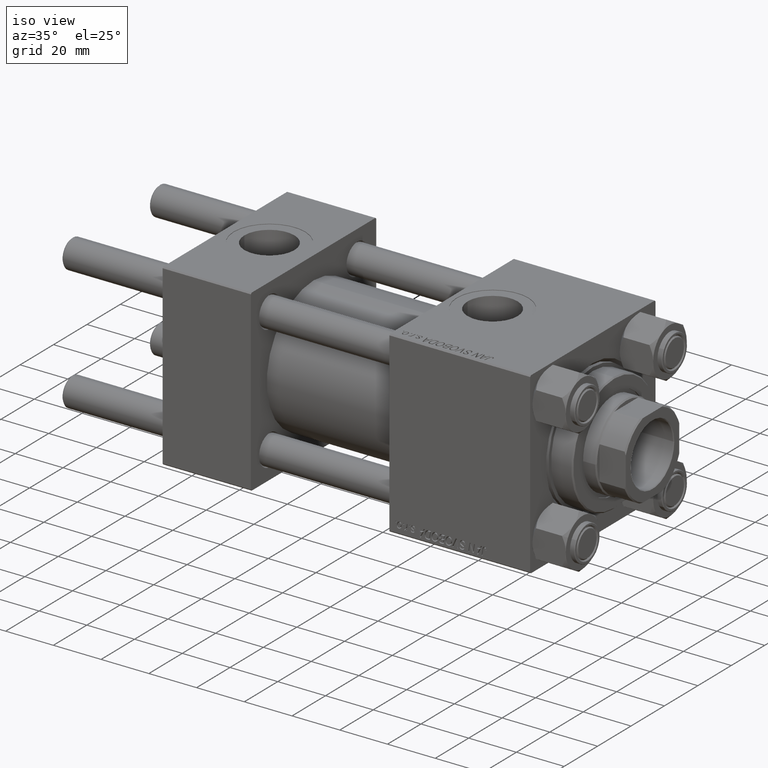
[diagram: clean part render]
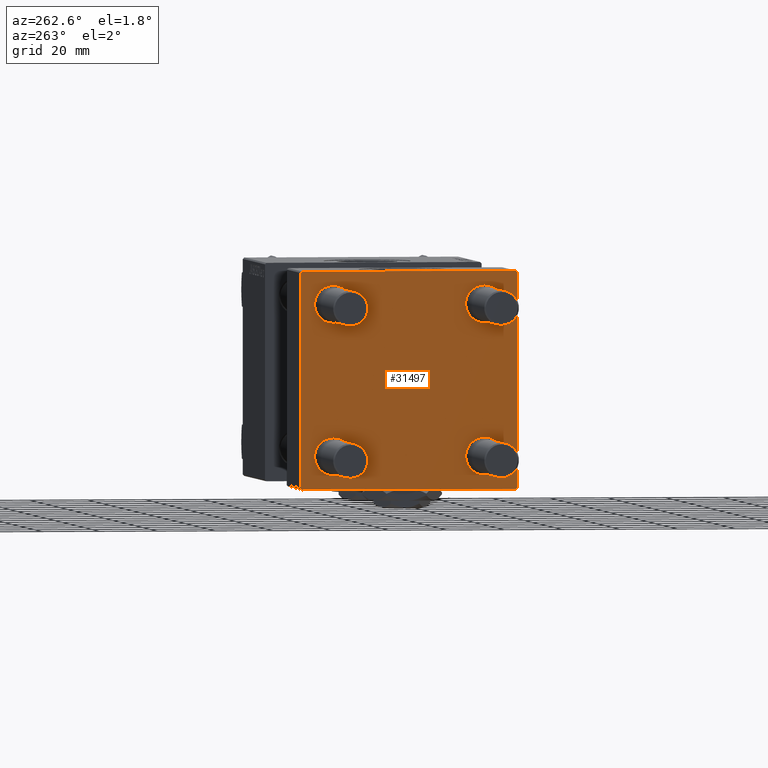
[diagram: tour spotlight — one face highlighted and labeled with its STEP entity id]
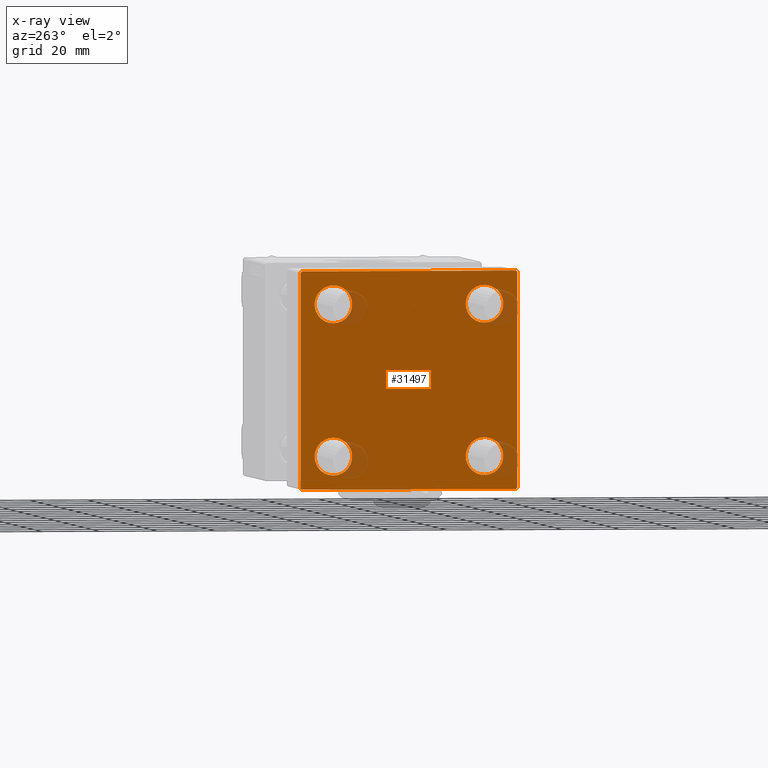
[diagram: x-ray of the same camera — body ghosted, this tour face saturated]
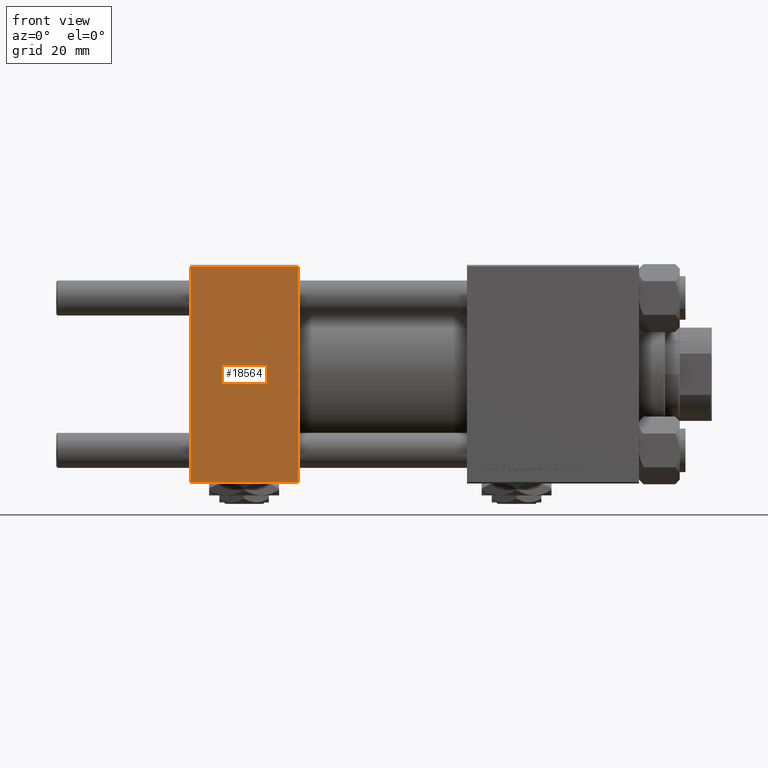
[diagram: tour spotlight — one face highlighted and labeled with its STEP entity id]
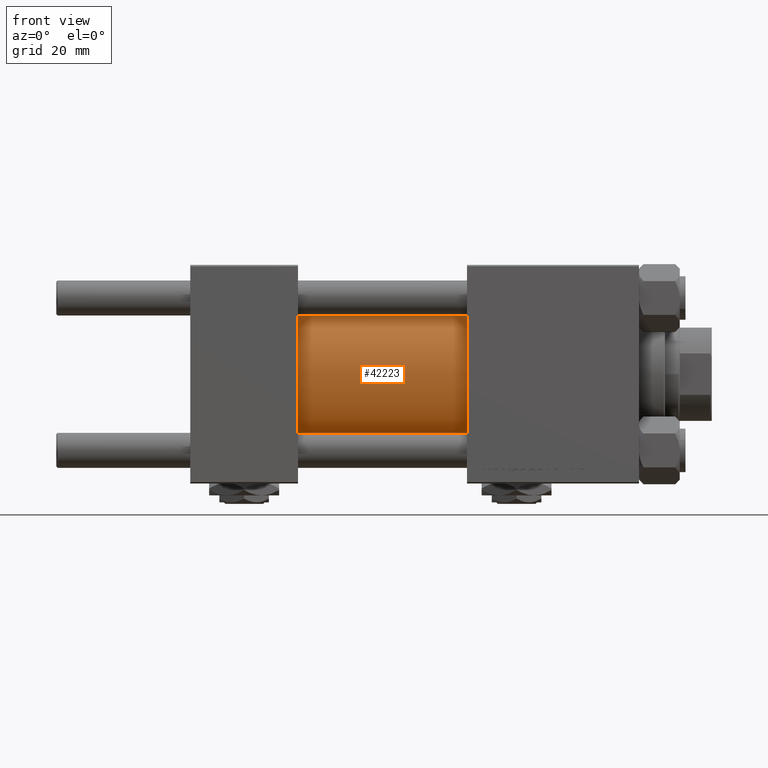
[diagram: tour spotlight — one face highlighted and labeled with its STEP entity id]
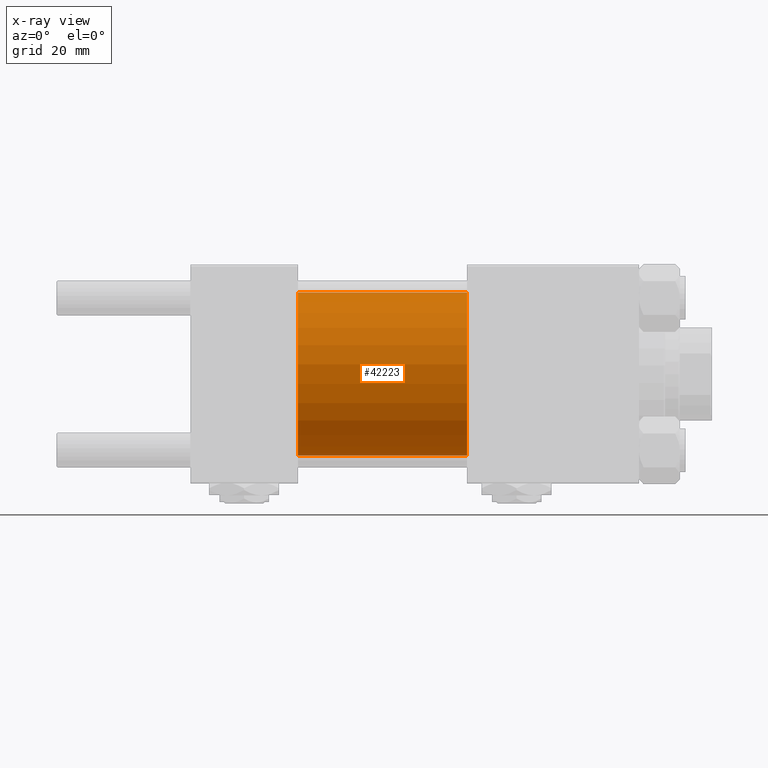
[diagram: x-ray of the same camera — body ghosted, this tour face saturated]
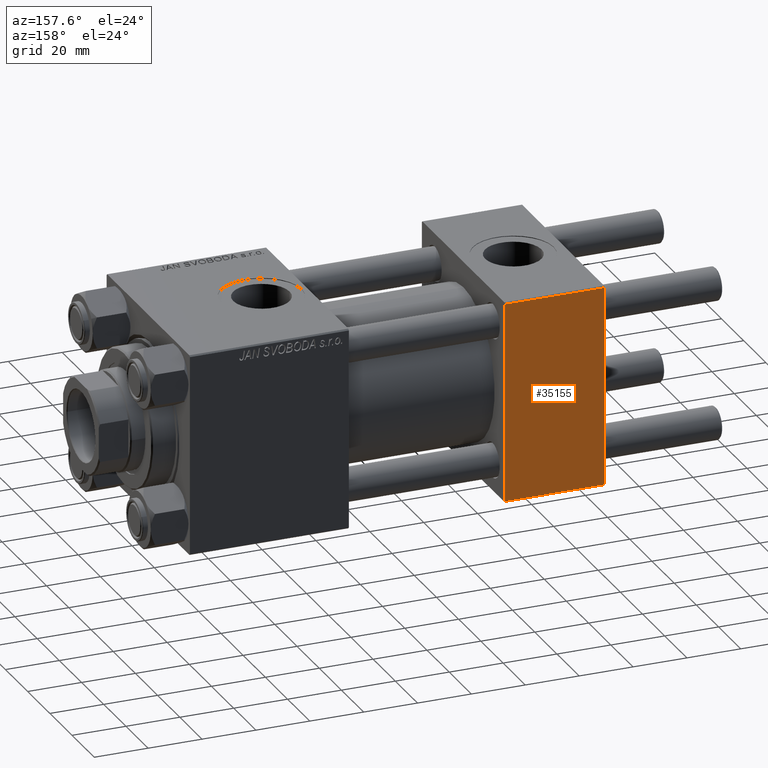
[diagram: tour spotlight — one face highlighted and labeled with its STEP entity id]
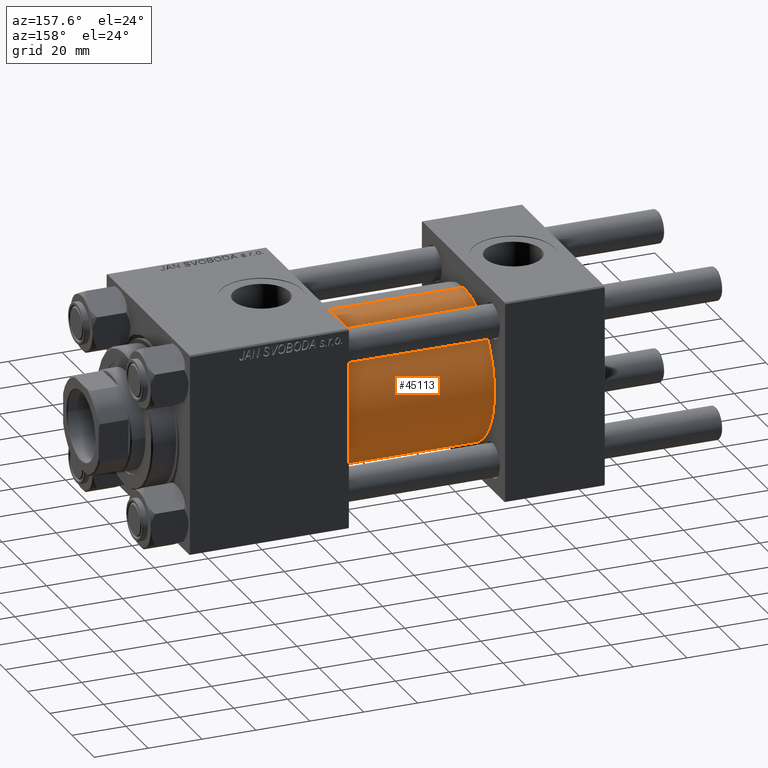
[diagram: tour spotlight — one face highlighted and labeled with its STEP entity id]
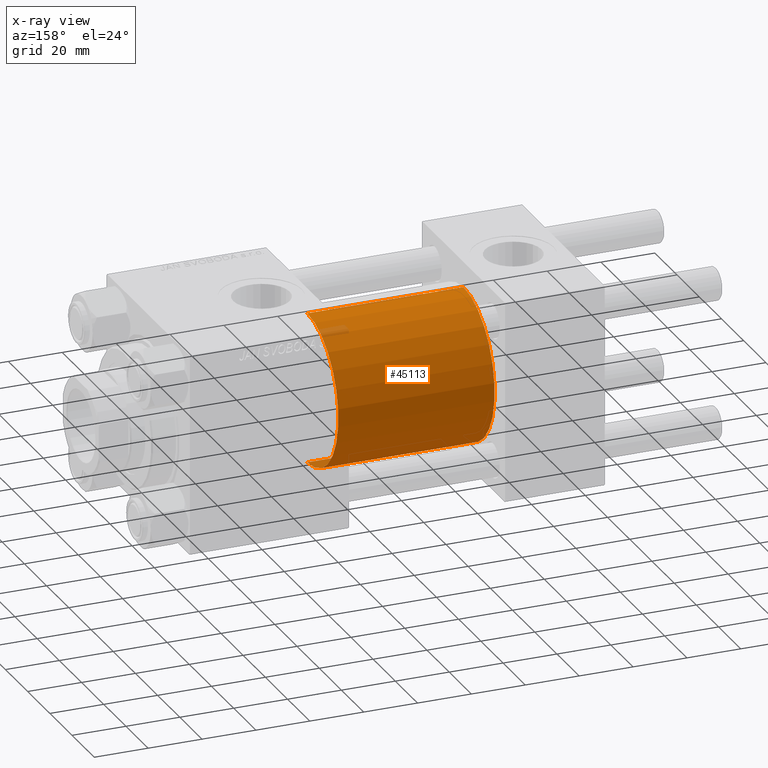
[diagram: x-ray of the same camera — body ghosted, this tour face saturated]
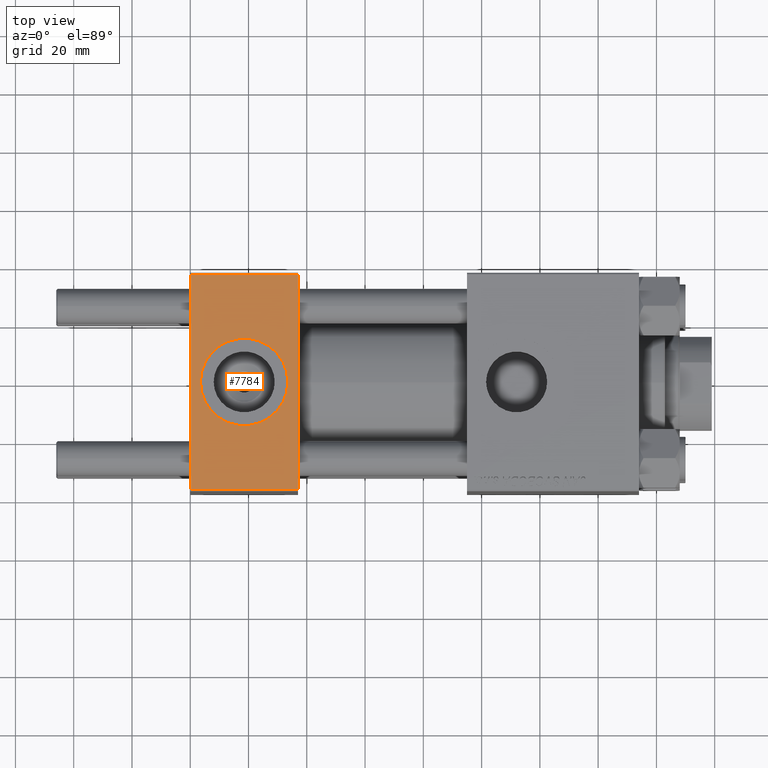
[diagram: tour spotlight — one face highlighted and labeled with its STEP entity id]
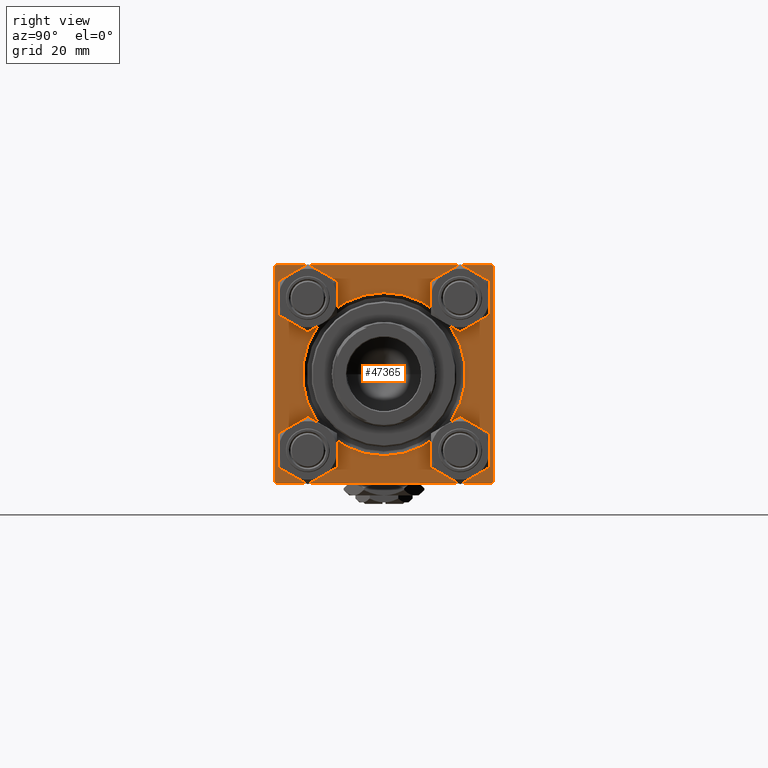
[diagram: tour spotlight — one face highlighted and labeled with its STEP entity id]
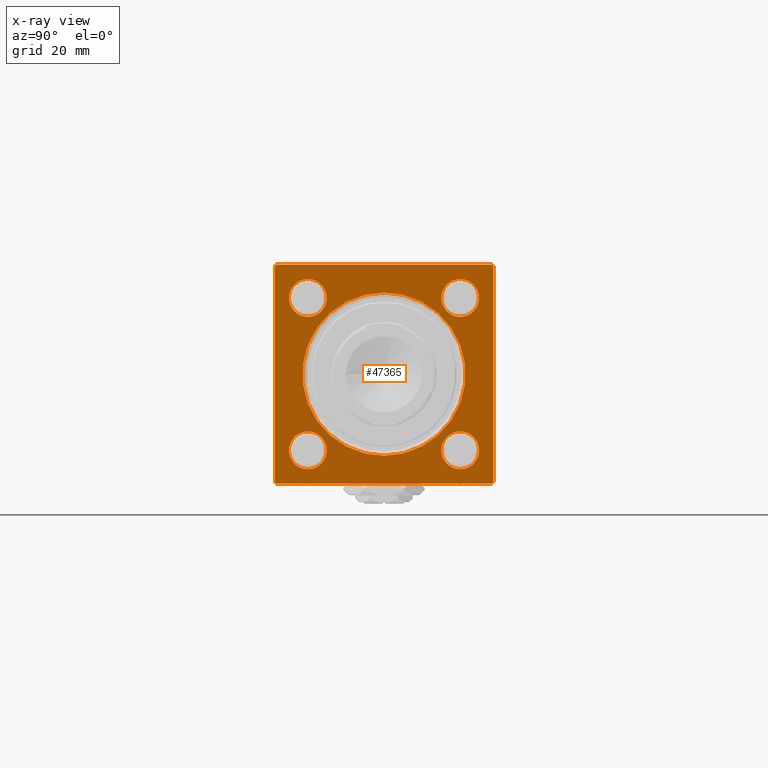
[diagram: x-ray of the same camera — body ghosted, this tour face saturated]
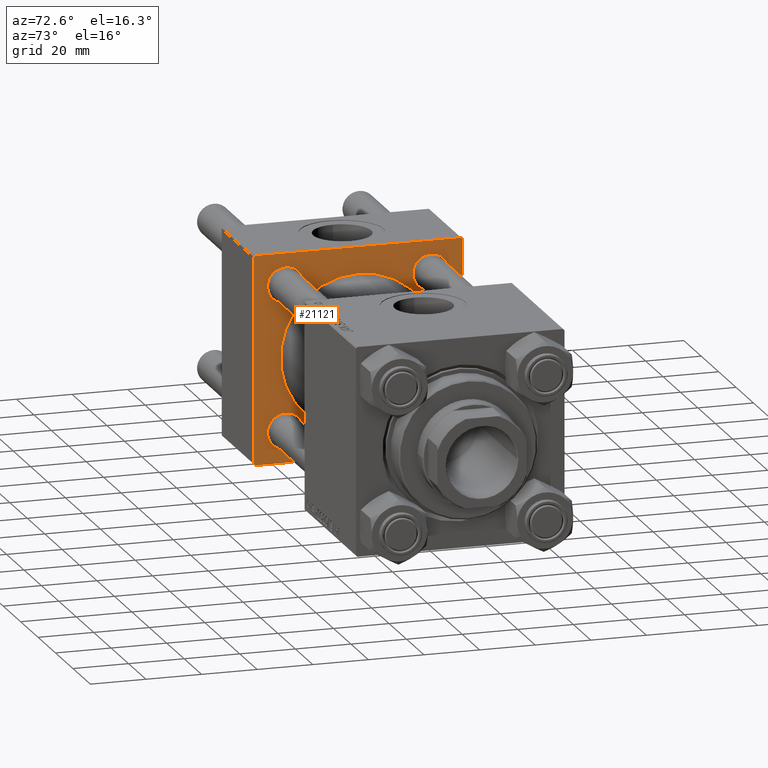
[diagram: tour spotlight — one face highlighted and labeled with its STEP entity id]
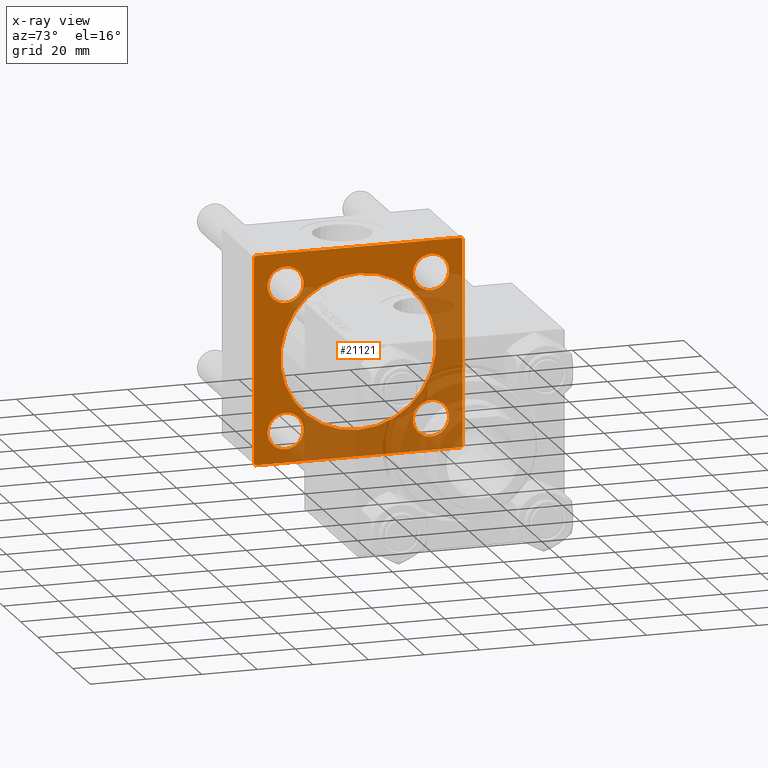
[diagram: x-ray of the same camera — body ghosted, this tour face saturated]
A machine part: a face-by-face anatomy tour. The part has 1233 B-rep faces; the first image is the clean iso view, then the 8 largest visible faces are spotlighted one at a time (largest first), each with its STEP entity span.

Face 1 — auxiliary view, entity #31497. An x-ray twin of the same camera follows (body ghosted, this face saturated) — the face is partly hidden behind the body. In plain terms, the highlighted planar face has unit normal (-1, 0, 0).
Definition (entity closure, byte-faithful):
#1459 = AXIS2_PLACEMENT_3D ( 'NONE', #22040, #9732, #37755 ) ;
#2240 = CIRCLE ( 'NONE', #3078, 6.500000000000015987 ) ;
#2801 = DIRECTION ( 'NONE',  ( 0.000000000000000000, 0.000000000000000000, 1.000000000000000000 ) ) ;
#3078 = AXIS2_PLACEMENT_3D ( 'NONE', #8465, #32294, #21031 ) ;
#3252 = VECTOR ( 'NONE', #43051, 1000.000000000000000 ) ;
#3308 = VECTOR ( 'NONE', #24715, 1000.000000000000000 ) ;
#3402 = DIRECTION ( 'NONE',  ( 0.000000000000000000, 0.000000000000000000, 1.000000000000000000 ) ) ;
#3562 = LINE ( 'NONE', #35523, #22307 ) ;
#3579 = VERTEX_POINT ( 'NONE', #19271 ) ;
#3750 = CARTESIAN_POINT ( 'NONE',  ( 0.000000000000000000, -37.24999999999975842, -37.25000000000027001 ) ) ;
#4050 = DIRECTION ( 'NONE',  ( 0.000000000000000000, 0.000000000000000000, 1.000000000000000000 ) ) ;
#4113 = DIRECTION ( 'NONE',  ( 0.000000000000000000, 0.7071067811865474617, -0.7071067811865474617 ) ) ;
#4767 = CARTESIAN_POINT ( 'NONE',  ( 0.000000000000000000, -26.14999999999999147, -19.64999999999999503 ) ) ;
#5291 = DIRECTION ( 'NONE',  ( 0.000000000000000000, -1.000000000000000000, -9.251858538542972814E-17 ) ) ;
#6348 = LINE ( 'NONE', #34367, #13940 ) ;
#6499 = DIRECTION ( 'NONE',  ( 1.000000000000000000, -0.000000000000000000, 0.000000000000000000 ) ) ;
#6725 = DIRECTION ( 'NONE',  ( -0.000000000000000000, 0.7071067811865474617, 0.7071067811865474617 ) ) ;
#7041 = VERTEX_POINT ( 'NONE', #13971 ) ;
#7192 = DIRECTION ( 'NONE',  ( 0.000000000000000000, 0.000000000000000000, 1.000000000000000000 ) ) ;
#7365 = ORIENTED_EDGE ( 'NONE', *, *, #38801, .T. ) ;
#7638 = EDGE_CURVE ( 'NONE', #35995, #47429, #16677, .T. ) ;
#7771 = EDGE_CURVE ( 'NONE', #34758, #27583, #43005, .T. ) ;
#8109 = EDGE_CURVE ( 'NONE', #46268, #50855, #27102, .T. ) ;
#8373 = DIRECTION ( 'NONE',  ( 1.000000000000000000, -0.000000000000000000, 0.000000000000000000 ) ) ;
#8465 = CARTESIAN_POINT ( 'NONE',  ( 0.000000000000000000, -26.14999999999999147, -26.15000000000000924 ) ) ;
#8718 = ORIENTED_EDGE ( 'NONE', *, *, #31053, .F. ) ;
#9730 = VERTEX_POINT ( 'NONE', #42798 ) ;
#9732 = DIRECTION ( 'NONE',  ( 1.000000000000000000, -0.000000000000000000, 0.000000000000000000 ) ) ;
#10452 = AXIS2_PLACEMENT_3D ( 'NONE', #39140, #14798, #7192 ) ;
#10685 = CARTESIAN_POINT ( 'NONE',  ( 0.000000000000000000, 37.49999999999999289, 37.50000000000000000 ) ) ;
#10696 = EDGE_CURVE ( 'NONE', #50855, #46268, #33024, .T. ) ;
#10957 = EDGE_CURVE ( 'NONE', #7041, #41734, #26248, .T. ) ;
#11232 = VECTOR ( 'NONE', #4113, 1000.000000000000114 ) ;
#11341 = AXIS2_PLACEMENT_3D ( 'NONE', #33740, #6499, #2801 ) ;
#11420 = ORIENTED_EDGE ( 'NONE', *, *, #7638, .T. ) ;
#11612 = EDGE_CURVE ( 'NONE', #32870, #30256, #35608, .T. ) ;
#11845 = AXIS2_PLACEMENT_3D ( 'NONE', #14334, #33715, #18264 ) ;
#13248 = ORIENTED_EDGE ( 'NONE', *, *, #50838, .T. ) ;
#13622 = ORIENTED_EDGE ( 'NONE', *, *, #7771, .T. ) ;
#13940 = VECTOR ( 'NONE', #5291, 1000.000000000000000 ) ;
#13971 = CARTESIAN_POINT ( 'NONE',  ( 0.000000000000000000, 37.49999999999999289, -36.99999999999998579 ) ) ;
#14334 = CARTESIAN_POINT ( 'NONE',  ( 0.000000000000000000, -26.14999999999999147, -26.15000000000000924 ) ) ;
#14798 = DIRECTION ( 'NONE',  ( 1.000000000000000000, -0.000000000000000000, 0.000000000000000000 ) ) ;
#15054 = CARTESIAN_POINT ( 'NONE',  ( 0.000000000000000000, 36.99999999999997868, -37.50000000000000000 ) ) ;
#16124 = ORIENTED_EDGE ( 'NONE', *, *, #11612, .T. ) ;
#16343 = FACE_BOUND ( 'NONE', #21091, .T. ) ;
#16471 = EDGE_CURVE ( 'NONE', #9730, #16691, #46440, .T. ) ;
#16677 = LINE ( 'NONE', #24520, #11232 ) ;
#16691 = VERTEX_POINT ( 'NONE', #32531 ) ;
#17392 = CARTESIAN_POINT ( 'NONE',  ( 0.000000000000000000, 37.49999999999999289, 37.50000000000000000 ) ) ;
#17925 = DIRECTION ( 'NONE',  ( 0.000000000000000000, 9.251858538542971581E-17, -1.000000000000000000 ) ) ;
#17959 = ORIENTED_EDGE ( 'NONE', *, *, #16471, .F. ) ;
#18264 = DIRECTION ( 'NONE',  ( 0.000000000000000000, 0.000000000000000000, 1.000000000000000000 ) ) ;
#18448 = VERTEX_POINT ( 'NONE', #4767 ) ;
#19055 = LINE ( 'NONE', #10685, #25261 ) ;
#19238 = ORIENTED_EDGE ( 'NONE', *, *, #20167, .T. ) ;
#19271 = CARTESIAN_POINT ( 'NONE',  ( 0.000000000000000000, -37.00000000000002132, -37.50000000000000711 ) ) ;
#19523 = CARTESIAN_POINT ( 'NONE',  ( 0.000000000000000000, 26.14999999999999858, 26.15000000000000213 ) ) ;
#19959 = CARTESIAN_POINT ( 'NONE',  ( 0.000000000000000000, 36.99999999999999289, 37.50000000000000000 ) ) ;
#20167 = EDGE_CURVE ( 'NONE', #30256, #32870, #29919, .T. ) ;
#21031 = DIRECTION ( 'NONE',  ( 0.000000000000000000, 0.000000000000000000, 1.000000000000000000 ) ) ;
#21091 = EDGE_LOOP ( 'NONE', ( #36535, #21899 ) ) ;
#21899 = ORIENTED_EDGE ( 'NONE', *, *, #10696, .T. ) ;
#22040 = CARTESIAN_POINT ( 'NONE',  ( 0.000000000000000000, -26.14999999999999147, 26.15000000000000924 ) ) ;
#22051 = CARTESIAN_POINT ( 'NONE',  ( 0.000000000000000000, -26.14999999999999147, -32.65000000000002700 ) ) ;
#22307 = VECTOR ( 'NONE', #6725, 1000.000000000000114 ) ;
#22791 = ORIENTED_EDGE ( 'NONE', *, *, #23122, .T. ) ;
#23122 = EDGE_CURVE ( 'NONE', #3579, #16691, #27062, .T. ) ;
#23438 = LINE ( 'NONE', #17392, #3308 ) ;
#23695 = DIRECTION ( 'NONE',  ( 1.000000000000000000, -0.000000000000000000, 0.000000000000000000 ) ) ;
#23851 = VECTOR ( 'NONE', #50592, 1000.000000000000114 ) ;
#24520 = CARTESIAN_POINT ( 'NONE',  ( 0.000000000000000000, 37.24999999999999289, 37.24999999999999289 ) ) ;
#24715 = DIRECTION ( 'NONE',  ( 0.000000000000000000, 0.000000000000000000, -1.000000000000000000 ) ) ;
#25261 = VECTOR ( 'NONE', #35036, 1000.000000000000000 ) ;
#26248 = LINE ( 'NONE', #34638, #23851 ) ;
#27062 = LINE ( 'NONE', #3750, #3252 ) ;
#27102 = CIRCLE ( 'NONE', #32131, 6.500000000000015987 ) ;
#27583 = VERTEX_POINT ( 'NONE', #37675 ) ;
#27602 = FACE_BOUND ( 'NONE', #38723, .T. ) ;
#27753 = AXIS2_PLACEMENT_3D ( 'NONE', #40427, #43594, #44093 ) ;
#28695 = CARTESIAN_POINT ( 'NONE',  ( 0.000000000000000000, 26.14999999999999858, 32.65000000000002700 ) ) ;
#29919 = CIRCLE ( 'NONE', #1459, 6.500000000000023093 ) ;
#30256 = VERTEX_POINT ( 'NONE', #47052 ) ;
#30745 = ORIENTED_EDGE ( 'NONE', *, *, #39489, .T. ) ;
#31053 = EDGE_CURVE ( 'NONE', #35995, #34305, #19055, .T. ) ;
#31367 = DIRECTION ( 'NONE',  ( 0.000000000000000000, 0.000000000000000000, 1.000000000000000000 ) ) ;
#31497 = ADVANCED_FACE ( 'NONE', ( #27602, #36247, #16343, #32318, #47775 ), #40685, .T. ) ;
#31695 = CARTESIAN_POINT ( 'NONE',  ( 0.000000000000000000, 26.14999999999999858, -26.15000000000000213 ) ) ;
#32131 = AXIS2_PLACEMENT_3D ( 'NONE', #31695, #8373, #3402 ) ;
#32294 = DIRECTION ( 'NONE',  ( 1.000000000000000000, -0.000000000000000000, 0.000000000000000000 ) ) ;
#32318 = FACE_BOUND ( 'NONE', #34542, .T. ) ;
#32531 = CARTESIAN_POINT ( 'NONE',  ( 0.000000000000000000, -37.50000000000000000, -37.00000000000003553 ) ) ;
#32838 = VERTEX_POINT ( 'NONE', #22051 ) ;
#32870 = VERTEX_POINT ( 'NONE', #40076 ) ;
#33024 = CIRCLE ( 'NONE', #10452, 6.500000000000015987 ) ;
#33715 = DIRECTION ( 'NONE',  ( 1.000000000000000000, -0.000000000000000000, 0.000000000000000000 ) ) ;
#33740 = CARTESIAN_POINT ( 'NONE',  ( 0.000000000000000000, -26.14999999999999147, 26.15000000000000924 ) ) ;
#34305 = VERTEX_POINT ( 'NONE', #38370 ) ;
#34367 = CARTESIAN_POINT ( 'NONE',  ( 0.000000000000000000, 37.49999999999999289, -37.50000000000000000 ) ) ;
#34542 = EDGE_LOOP ( 'NONE', ( #13622, #41204 ) ) ;
#34638 = CARTESIAN_POINT ( 'NONE',  ( 0.000000000000000000, 37.24999999999998579, -37.24999999999998579 ) ) ;
#34743 = CARTESIAN_POINT ( 'NONE',  ( 0.000000000000000000, 26.14999999999999858, -32.65000000000001990 ) ) ;
#34758 = VERTEX_POINT ( 'NONE', #28695 ) ;
#35036 = DIRECTION ( 'NONE',  ( 0.000000000000000000, -1.000000000000000000, -9.251858538542971581E-17 ) ) ;
#35523 = CARTESIAN_POINT ( 'NONE',  ( -0.000000000000000000, -37.25000000000000000, 37.25000000000000000 ) ) ;
#35608 = CIRCLE ( 'NONE', #11341, 6.500000000000023093 ) ;
#35995 = VERTEX_POINT ( 'NONE', #19959 ) ;
#36247 = FACE_BOUND ( 'NONE', #44701, .T. ) ;
#36535 = ORIENTED_EDGE ( 'NONE', *, *, #8109, .T. ) ;
#37675 = CARTESIAN_POINT ( 'NONE',  ( 0.000000000000000000, 26.14999999999999858, 19.64999999999998437 ) ) ;
#37755 = DIRECTION ( 'NONE',  ( 0.000000000000000000, 0.000000000000000000, 1.000000000000000000 ) ) ;
#38342 = CARTESIAN_POINT ( 'NONE',  ( 0.000000000000000000, -37.50000000000000711, 37.49999999999999289 ) ) ;
#38370 = CARTESIAN_POINT ( 'NONE',  ( 0.000000000000000000, -37.00000000000000711, 37.49999999999999289 ) ) ;
#38723 = EDGE_LOOP ( 'NONE', ( #16124, #19238 ) ) ;
#38801 = EDGE_CURVE ( 'NONE', #41734, #3579, #6348, .T. ) ;
#39140 = CARTESIAN_POINT ( 'NONE',  ( 0.000000000000000000, 26.14999999999999858, -26.15000000000000213 ) ) ;
#39489 = EDGE_CURVE ( 'NONE', #18448, #32838, #2240, .T. ) ;
#39970 = EDGE_CURVE ( 'NONE', #9730, #34305, #3562, .T. ) ;
#40076 = CARTESIAN_POINT ( 'NONE',  ( 0.000000000000000000, -26.14999999999999147, 32.65000000000003411 ) ) ;
#40427 = CARTESIAN_POINT ( 'NONE',  ( 0.000000000000000000, 0.000000000000000000, 0.000000000000000000 ) ) ;
#40685 = PLANE ( 'NONE',  #27753 ) ;
#40859 = ORIENTED_EDGE ( 'NONE', *, *, #46042, .T. ) ;
#41204 = ORIENTED_EDGE ( 'NONE', *, *, #49684, .T. ) ;
#41220 = ORIENTED_EDGE ( 'NONE', *, *, #39970, .T. ) ;
#41734 = VERTEX_POINT ( 'NONE', #15054 ) ;
#42798 = CARTESIAN_POINT ( 'NONE',  ( 0.000000000000000000, -37.50000000000000711, 36.99999999999999289 ) ) ;
#43005 = CIRCLE ( 'NONE', #47181, 6.500000000000023093 ) ;
#43025 = CARTESIAN_POINT ( 'NONE',  ( 0.000000000000000000, 26.14999999999999858, -19.64999999999998792 ) ) ;
#43051 = DIRECTION ( 'NONE',  ( 0.000000000000000000, -0.7071067811865524577, 0.7071067811865426878 ) ) ;
#43594 = DIRECTION ( 'NONE',  ( -1.000000000000000000, 0.000000000000000000, -0.000000000000000000 ) ) ;
#44093 = DIRECTION ( 'NONE',  ( -0.000000000000000000, 0.000000000000000000, 1.000000000000000000 ) ) ;
#44283 = EDGE_LOOP ( 'NONE', ( #40859, #48081, #7365, #22791, #17959, #41220, #8718, #11420 ) ) ;
#44377 = CIRCLE ( 'NONE', #46067, 6.500000000000023093 ) ;
#44701 = EDGE_LOOP ( 'NONE', ( #30745, #13248 ) ) ;
#46042 = EDGE_CURVE ( 'NONE', #47429, #7041, #23438, .T. ) ;
#46067 = AXIS2_PLACEMENT_3D ( 'NONE', #47854, #51512, #31367 ) ;
#46103 = CIRCLE ( 'NONE', #11845, 6.500000000000015987 ) ;
#46268 = VERTEX_POINT ( 'NONE', #43025 ) ;
#46440 = LINE ( 'NONE', #38342, #47435 ) ;
#47052 = CARTESIAN_POINT ( 'NONE',  ( 0.000000000000000000, -26.14999999999999147, 19.64999999999999147 ) ) ;
#47181 = AXIS2_PLACEMENT_3D ( 'NONE', #19523, #23695, #4050 ) ;
#47429 = VERTEX_POINT ( 'NONE', #48692 ) ;
#47435 = VECTOR ( 'NONE', #17925, 1000.000000000000000 ) ;
#47775 = FACE_OUTER_BOUND ( 'NONE', #44283, .T. ) ;
#47854 = CARTESIAN_POINT ( 'NONE',  ( 0.000000000000000000, 26.14999999999999858, 26.15000000000000213 ) ) ;
#48081 = ORIENTED_EDGE ( 'NONE', *, *, #10957, .T. ) ;
#48692 = CARTESIAN_POINT ( 'NONE',  ( 0.000000000000000000, 37.49999999999999289, 37.00000000000000000 ) ) ;
#49684 = EDGE_CURVE ( 'NONE', #27583, #34758, #44377, .T. ) ;
#50592 = DIRECTION ( 'NONE',  ( -0.000000000000000000, -0.7071067811865474617, -0.7071067811865474617 ) ) ;
#50838 = EDGE_CURVE ( 'NONE', #32838, #18448, #46103, .T. ) ;
#50855 = VERTEX_POINT ( 'NONE', #34743 ) ;
#51512 = DIRECTION ( 'NONE',  ( 1.000000000000000000, -0.000000000000000000, 0.000000000000000000 ) ) ;

Face 2 — front view, entity #18564. In plain terms, the highlighted planar face has unit normal (0, 1, 0).
Definition (entity closure, byte-faithful):
#1814 = CARTESIAN_POINT ( 'NONE',  ( 37.00000000000000000, -37.50000000000000711, 36.99999999999999289 ) ) ;
#2370 = AXIS2_PLACEMENT_3D ( 'NONE', #21532, #5025, #33323 ) ;
#3865 = ORIENTED_EDGE ( 'NONE', *, *, #24646, .T. ) ;
#5025 = DIRECTION ( 'NONE',  ( -0.000000000000000000, 1.000000000000000000, 9.251858538542971581E-17 ) ) ;
#6139 = DIRECTION ( 'NONE',  ( 1.000000000000000000, 0.000000000000000000, 0.000000000000000000 ) ) ;
#6218 = VERTEX_POINT ( 'NONE', #48476 ) ;
#8007 = CARTESIAN_POINT ( 'NONE',  ( 37.00000000000000000, -37.50000000000000711, 37.49999999999999289 ) ) ;
#8302 = VECTOR ( 'NONE', #44208, 1000.000000000000000 ) ;
#9730 = VERTEX_POINT ( 'NONE', #42798 ) ;
#12191 = DIRECTION ( 'NONE',  ( 0.000000000000000000, 9.251858538542971581E-17, -1.000000000000000000 ) ) ;
#13529 = VERTEX_POINT ( 'NONE', #1814 ) ;
#14203 = FACE_OUTER_BOUND ( 'NONE', #17612, .T. ) ;
#16471 = EDGE_CURVE ( 'NONE', #9730, #16691, #46440, .T. ) ;
#16480 = VECTOR ( 'NONE', #6139, 1000.000000000000000 ) ;
#16503 = EDGE_CURVE ( 'NONE', #16691, #6218, #37826, .T. ) ;
#16691 = VERTEX_POINT ( 'NONE', #32531 ) ;
#17612 = EDGE_LOOP ( 'NONE', ( #17694, #21929, #30056, #3865 ) ) ;
#17694 = ORIENTED_EDGE ( 'NONE', *, *, #16471, .T. ) ;
#17925 = DIRECTION ( 'NONE',  ( 0.000000000000000000, 9.251858538542971581E-17, -1.000000000000000000 ) ) ;
#18564 = ADVANCED_FACE ( 'NONE', ( #14203 ), #49536, .F. ) ;
#21532 = CARTESIAN_POINT ( 'NONE',  ( 37.00000000000000000, -37.50000000000000711, 37.49999999999999289 ) ) ;
#21587 = CARTESIAN_POINT ( 'NONE',  ( 37.00000000000000000, -37.50000000000000000, -37.00000000000003553 ) ) ;
#21600 = VECTOR ( 'NONE', #12191, 1000.000000000000000 ) ;
#21929 = ORIENTED_EDGE ( 'NONE', *, *, #16503, .T. ) ;
#24053 = LINE ( 'NONE', #47887, #8302 ) ;
#24646 = EDGE_CURVE ( 'NONE', #13529, #9730, #24053, .T. ) ;
#30056 = ORIENTED_EDGE ( 'NONE', *, *, #43188, .F. ) ;
#32531 = CARTESIAN_POINT ( 'NONE',  ( 0.000000000000000000, -37.50000000000000000, -37.00000000000003553 ) ) ;
#33323 = DIRECTION ( 'NONE',  ( 0.000000000000000000, -9.251858538542971581E-17, 1.000000000000000000 ) ) ;
#36025 = LINE ( 'NONE', #8007, #21600 ) ;
#37826 = LINE ( 'NONE', #21587, #16480 ) ;
#38342 = CARTESIAN_POINT ( 'NONE',  ( 0.000000000000000000, -37.50000000000000711, 37.49999999999999289 ) ) ;
#42798 = CARTESIAN_POINT ( 'NONE',  ( 0.000000000000000000, -37.50000000000000711, 36.99999999999999289 ) ) ;
#43188 = EDGE_CURVE ( 'NONE', #13529, #6218, #36025, .T. ) ;
#44208 = DIRECTION ( 'NONE',  ( -1.000000000000000000, 0.000000000000000000, 0.000000000000000000 ) ) ;
#46440 = LINE ( 'NONE', #38342, #47435 ) ;
#47435 = VECTOR ( 'NONE', #17925, 1000.000000000000000 ) ;
#47887 = CARTESIAN_POINT ( 'NONE',  ( 37.00000000000000000, -37.50000000000000711, 36.99999999999999289 ) ) ;
#48476 = CARTESIAN_POINT ( 'NONE',  ( 37.00000000000000000, -37.50000000000000000, -37.00000000000003553 ) ) ;
#49536 = PLANE ( 'NONE',  #2370 ) ;

Face 3 — front view, entity #42223. An x-ray twin of the same camera follows (body ghosted, this face saturated) — the face is partly hidden behind the body. In plain terms, the highlighted cylindrical surface (partial cylindrical patch) has radius 28 mm, axis along (-1, -0, -0).
Definition (entity closure, byte-faithful):
#1189 = ORIENTED_EDGE ( 'NONE', *, *, #32937, .F. ) ;
#4481 = VECTOR ( 'NONE', #35190, 1000.000000000000000 ) ;
#4886 = EDGE_CURVE ( 'NONE', #42745, #31127, #23131, .T. ) ;
#6306 = DIRECTION ( 'NONE',  ( -1.000000000000000000, -0.000000000000000000, -0.000000000000000000 ) ) ;
#6541 = CIRCLE ( 'NONE', #50037, 28.00000000000000000 ) ;
#8131 = CARTESIAN_POINT ( 'NONE',  ( 95.00000000000000000, 3.429011037612588487E-15, -28.00000000000000000 ) ) ;
#9973 = DIRECTION ( 'NONE',  ( 0.000000000000000000, 0.000000000000000000, 1.000000000000000000 ) ) ;
#10396 = CARTESIAN_POINT ( 'NONE',  ( 37.00000000000000000, 3.429011037612588487E-15, -28.00000000000000000 ) ) ;
#10824 = DIRECTION ( 'NONE',  ( 1.000000000000000000, 0.000000000000000000, 0.000000000000000000 ) ) ;
#11993 = DIRECTION ( 'NONE',  ( 1.000000000000000000, -0.000000000000000000, 0.000000000000000000 ) ) ;
#14058 = AXIS2_PLACEMENT_3D ( 'NONE', #41657, #6306, #9973 ) ;
#15010 = DIRECTION ( 'NONE',  ( 0.000000000000000000, 0.000000000000000000, -1.000000000000000000 ) ) ;
#15830 = EDGE_CURVE ( 'NONE', #42745, #44401, #18196, .T. ) ;
#18196 = CIRCLE ( 'NONE', #30746, 28.00000000000000000 ) ;
#23131 = LINE ( 'NONE', #41549, #4481 ) ;
#24026 = CARTESIAN_POINT ( 'NONE',  ( 37.00000000000000000, 0.000000000000000000, 0.000000000000000000 ) ) ;
#26889 = EDGE_LOOP ( 'NONE', ( #1189, #33915, #42563, #28539 ) ) ;
#27948 = DIRECTION ( 'NONE',  ( 0.000000000000000000, 0.000000000000000000, 1.000000000000000000 ) ) ;
#28039 = FACE_OUTER_BOUND ( 'NONE', #26889, .T. ) ;
#28270 = LINE ( 'NONE', #8131, #41945 ) ;
#28539 = ORIENTED_EDGE ( 'NONE', *, *, #42905, .T. ) ;
#30611 = CARTESIAN_POINT ( 'NONE',  ( 95.00000000000000000, 0.000000000000000000, 28.00000000000000000 ) ) ;
#30746 = AXIS2_PLACEMENT_3D ( 'NONE', #46686, #10824, #15010 ) ;
#31127 = VERTEX_POINT ( 'NONE', #40752 ) ;
#32937 = EDGE_CURVE ( 'NONE', #44401, #43119, #28270, .T. ) ;
#33915 = ORIENTED_EDGE ( 'NONE', *, *, #15830, .F. ) ;
#35190 = DIRECTION ( 'NONE',  ( -1.000000000000000000, -0.000000000000000000, -0.000000000000000000 ) ) ;
#36176 = CYLINDRICAL_SURFACE ( 'NONE', #14058, 28.00000000000000000 ) ;
#40752 = CARTESIAN_POINT ( 'NONE',  ( 37.00000000000000000, 0.000000000000000000, 28.00000000000000000 ) ) ;
#41549 = CARTESIAN_POINT ( 'NONE',  ( 95.00000000000000000, 0.000000000000000000, 28.00000000000000000 ) ) ;
#41657 = CARTESIAN_POINT ( 'NONE',  ( 95.00000000000000000, 0.000000000000000000, 0.000000000000000000 ) ) ;
#41945 = VECTOR ( 'NONE', #44250, 1000.000000000000000 ) ;
#42223 = ADVANCED_FACE ( 'NONE', ( #28039 ), #36176, .T. ) ;
#42563 = ORIENTED_EDGE ( 'NONE', *, *, #4886, .T. ) ;
#42671 = CARTESIAN_POINT ( 'NONE',  ( 95.00000000000000000, 3.429011037612588487E-15, -28.00000000000000000 ) ) ;
#42745 = VERTEX_POINT ( 'NONE', #30611 ) ;
#42905 = EDGE_CURVE ( 'NONE', #31127, #43119, #6541, .T. ) ;
#43119 = VERTEX_POINT ( 'NONE', #10396 ) ;
#44250 = DIRECTION ( 'NONE',  ( -1.000000000000000000, -0.000000000000000000, -0.000000000000000000 ) ) ;
#44401 = VERTEX_POINT ( 'NONE', #42671 ) ;
#46686 = CARTESIAN_POINT ( 'NONE',  ( 95.00000000000000000, 0.000000000000000000, 0.000000000000000000 ) ) ;
#50037 = AXIS2_PLACEMENT_3D ( 'NONE', #24026, #11993, #27948 ) ;

Face 4 — auxiliary view, entity #35155. In plain terms, the highlighted planar face has unit normal (0, 1, 0).
Definition (entity closure, byte-faithful):
#3308 = VECTOR ( 'NONE', #24715, 1000.000000000000000 ) ;
#4233 = VECTOR ( 'NONE', #33704, 1000.000000000000000 ) ;
#4528 = DIRECTION ( 'NONE',  ( 0.000000000000000000, 0.000000000000000000, -1.000000000000000000 ) ) ;
#4935 = DIRECTION ( 'NONE',  ( -0.000000000000000000, 1.000000000000000000, 0.000000000000000000 ) ) ;
#7041 = VERTEX_POINT ( 'NONE', #13971 ) ;
#10965 = CARTESIAN_POINT ( 'NONE',  ( 37.00000000000000000, 37.49999999999999289, 37.00000000000000000 ) ) ;
#11126 = VERTEX_POINT ( 'NONE', #23608 ) ;
#12805 = DIRECTION ( 'NONE',  ( 0.000000000000000000, -0.000000000000000000, 1.000000000000000000 ) ) ;
#13393 = ORIENTED_EDGE ( 'NONE', *, *, #20681, .T. ) ;
#13971 = CARTESIAN_POINT ( 'NONE',  ( 0.000000000000000000, 37.49999999999999289, -36.99999999999998579 ) ) ;
#16836 = LINE ( 'NONE', #32817, #43234 ) ;
#17392 = CARTESIAN_POINT ( 'NONE',  ( 0.000000000000000000, 37.49999999999999289, 37.50000000000000000 ) ) ;
#18722 = AXIS2_PLACEMENT_3D ( 'NONE', #48918, #4935, #12805 ) ;
#20681 = EDGE_CURVE ( 'NONE', #47429, #11126, #28662, .T. ) ;
#21436 = PLANE ( 'NONE',  #18722 ) ;
#23438 = LINE ( 'NONE', #17392, #3308 ) ;
#23608 = CARTESIAN_POINT ( 'NONE',  ( 37.00000000000000000, 37.49999999999999289, 37.00000000000000000 ) ) ;
#24715 = DIRECTION ( 'NONE',  ( 0.000000000000000000, 0.000000000000000000, -1.000000000000000000 ) ) ;
#25293 = ORIENTED_EDGE ( 'NONE', *, *, #49932, .T. ) ;
#28662 = LINE ( 'NONE', #10965, #47467 ) ;
#28668 = ORIENTED_EDGE ( 'NONE', *, *, #46042, .F. ) ;
#30293 = CARTESIAN_POINT ( 'NONE',  ( 37.00000000000000000, 37.49999999999999289, -36.99999999999998579 ) ) ;
#30995 = CARTESIAN_POINT ( 'NONE',  ( 37.00000000000000000, 37.49999999999999289, -36.99999999999998579 ) ) ;
#31861 = ORIENTED_EDGE ( 'NONE', *, *, #39549, .T. ) ;
#32817 = CARTESIAN_POINT ( 'NONE',  ( 37.00000000000000000, 37.49999999999999289, 37.50000000000000000 ) ) ;
#33704 = DIRECTION ( 'NONE',  ( -1.000000000000000000, 0.000000000000000000, 0.000000000000000000 ) ) ;
#35155 = ADVANCED_FACE ( 'NONE', ( #48407 ), #21436, .T. ) ;
#39549 = EDGE_CURVE ( 'NONE', #11126, #50272, #16836, .T. ) ;
#41545 = LINE ( 'NONE', #30293, #4233 ) ;
#43234 = VECTOR ( 'NONE', #4528, 1000.000000000000000 ) ;
#43910 = EDGE_LOOP ( 'NONE', ( #31861, #25293, #28668, #13393 ) ) ;
#46042 = EDGE_CURVE ( 'NONE', #47429, #7041, #23438, .T. ) ;
#47429 = VERTEX_POINT ( 'NONE', #48692 ) ;
#47467 = VECTOR ( 'NONE', #48307, 1000.000000000000000 ) ;
#48307 = DIRECTION ( 'NONE',  ( 1.000000000000000000, 0.000000000000000000, 0.000000000000000000 ) ) ;
#48407 = FACE_OUTER_BOUND ( 'NONE', #43910, .T. ) ;
#48692 = CARTESIAN_POINT ( 'NONE',  ( 0.000000000000000000, 37.49999999999999289, 37.00000000000000000 ) ) ;
#48918 = CARTESIAN_POINT ( 'NONE',  ( 37.00000000000000000, 37.49999999999999289, 37.50000000000000000 ) ) ;
#49932 = EDGE_CURVE ( 'NONE', #50272, #7041, #41545, .T. ) ;
#50272 = VERTEX_POINT ( 'NONE', #30995 ) ;

Face 5 — auxiliary view, entity #45113. An x-ray twin of the same camera follows (body ghosted, this face saturated) — the face is partly hidden behind the body. In plain terms, the highlighted cylindrical surface (partial cylindrical patch) has radius 28 mm, axis along (-1, -0, -0).
Definition (entity closure, byte-faithful):
#446 = DIRECTION ( 'NONE',  ( 0.000000000000000000, 0.000000000000000000, 1.000000000000000000 ) ) ;
#3133 = CARTESIAN_POINT ( 'NONE',  ( 95.00000000000000000, 0.000000000000000000, 0.000000000000000000 ) ) ;
#3459 = EDGE_LOOP ( 'NONE', ( #51615, #47800, #11062, #5932 ) ) ;
#4481 = VECTOR ( 'NONE', #35190, 1000.000000000000000 ) ;
#4886 = EDGE_CURVE ( 'NONE', #42745, #31127, #23131, .T. ) ;
#5360 = CARTESIAN_POINT ( 'NONE',  ( 95.00000000000000000, 0.000000000000000000, 0.000000000000000000 ) ) ;
#5932 = ORIENTED_EDGE ( 'NONE', *, *, #4886, .F. ) ;
#8131 = CARTESIAN_POINT ( 'NONE',  ( 95.00000000000000000, 3.429011037612588487E-15, -28.00000000000000000 ) ) ;
#8568 = EDGE_CURVE ( 'NONE', #43119, #31127, #35542, .T. ) ;
#10396 = CARTESIAN_POINT ( 'NONE',  ( 37.00000000000000000, 3.429011037612588487E-15, -28.00000000000000000 ) ) ;
#11062 = ORIENTED_EDGE ( 'NONE', *, *, #8568, .T. ) ;
#13281 = CARTESIAN_POINT ( 'NONE',  ( 37.00000000000000000, 0.000000000000000000, 0.000000000000000000 ) ) ;
#14605 = AXIS2_PLACEMENT_3D ( 'NONE', #13281, #49133, #446 ) ;
#17260 = CIRCLE ( 'NONE', #18097, 28.00000000000000000 ) ;
#18097 = AXIS2_PLACEMENT_3D ( 'NONE', #5360, #29465, #45938 ) ;
#19379 = FACE_OUTER_BOUND ( 'NONE', #3459, .T. ) ;
#21826 = DIRECTION ( 'NONE',  ( 0.000000000000000000, 0.000000000000000000, 1.000000000000000000 ) ) ;
#23131 = LINE ( 'NONE', #41549, #4481 ) ;
#28270 = LINE ( 'NONE', #8131, #41945 ) ;
#29465 = DIRECTION ( 'NONE',  ( 1.000000000000000000, 0.000000000000000000, 0.000000000000000000 ) ) ;
#30611 = CARTESIAN_POINT ( 'NONE',  ( 95.00000000000000000, 0.000000000000000000, 28.00000000000000000 ) ) ;
#30652 = DIRECTION ( 'NONE',  ( -1.000000000000000000, -0.000000000000000000, -0.000000000000000000 ) ) ;
#31127 = VERTEX_POINT ( 'NONE', #40752 ) ;
#32937 = EDGE_CURVE ( 'NONE', #44401, #43119, #28270, .T. ) ;
#35190 = DIRECTION ( 'NONE',  ( -1.000000000000000000, -0.000000000000000000, -0.000000000000000000 ) ) ;
#35542 = CIRCLE ( 'NONE', #14605, 28.00000000000000000 ) ;
#37807 = CYLINDRICAL_SURFACE ( 'NONE', #40054, 28.00000000000000000 ) ;
#38345 = EDGE_CURVE ( 'NONE', #44401, #42745, #17260, .T. ) ;
#40054 = AXIS2_PLACEMENT_3D ( 'NONE', #3133, #30652, #21826 ) ;
#40752 = CARTESIAN_POINT ( 'NONE',  ( 37.00000000000000000, 0.000000000000000000, 28.00000000000000000 ) ) ;
#41549 = CARTESIAN_POINT ( 'NONE',  ( 95.00000000000000000, 0.000000000000000000, 28.00000000000000000 ) ) ;
#41945 = VECTOR ( 'NONE', #44250, 1000.000000000000000 ) ;
#42671 = CARTESIAN_POINT ( 'NONE',  ( 95.00000000000000000, 3.429011037612588487E-15, -28.00000000000000000 ) ) ;
#42745 = VERTEX_POINT ( 'NONE', #30611 ) ;
#43119 = VERTEX_POINT ( 'NONE', #10396 ) ;
#44250 = DIRECTION ( 'NONE',  ( -1.000000000000000000, -0.000000000000000000, -0.000000000000000000 ) ) ;
#44401 = VERTEX_POINT ( 'NONE', #42671 ) ;
#45113 = ADVANCED_FACE ( 'NONE', ( #19379 ), #37807, .T. ) ;
#45938 = DIRECTION ( 'NONE',  ( 0.000000000000000000, 0.000000000000000000, -1.000000000000000000 ) ) ;
#47800 = ORIENTED_EDGE ( 'NONE', *, *, #32937, .T. ) ;
#49133 = DIRECTION ( 'NONE',  ( 1.000000000000000000, -0.000000000000000000, 0.000000000000000000 ) ) ;
#51615 = ORIENTED_EDGE ( 'NONE', *, *, #38345, .F. ) ;

Face 6 — top view, entity #7784. In plain terms, the highlighted planar face has unit normal (0, 0, -1).
Definition (entity closure, byte-faithful):
#1597 = EDGE_CURVE ( 'NONE', #38810, #31291, #47970, .T. ) ;
#2120 = ORIENTED_EDGE ( 'NONE', *, *, #26049, .F. ) ;
#4171 = VECTOR ( 'NONE', #43261, 1000.000000000000000 ) ;
#7784 = ADVANCED_FACE ( 'NONE', ( #28906, #16876 ), #20030, .F. ) ;
#8245 = DIRECTION ( 'NONE',  ( 0.000000000000000000, 9.251858538542971581E-17, -1.000000000000000000 ) ) ;
#9700 = CARTESIAN_POINT ( 'NONE',  ( 0.000000000000000000, 36.99999999999999289, 37.50000000000000000 ) ) ;
#9963 = DIRECTION ( 'NONE',  ( -1.000000000000000000, 0.000000000000000000, 0.000000000000000000 ) ) ;
#10685 = CARTESIAN_POINT ( 'NONE',  ( 0.000000000000000000, 37.49999999999999289, 37.50000000000000000 ) ) ;
#13938 = DIRECTION ( 'NONE',  ( 1.000000000000000000, 0.000000000000000000, 0.000000000000000000 ) ) ;
#14045 = CARTESIAN_POINT ( 'NONE',  ( 3.499999999999997780, -3.367200229209391300E-15, 37.50000000000000000 ) ) ;
#15249 = CARTESIAN_POINT ( 'NONE',  ( 37.00000000000000000, 37.49999999999999289, 37.50000000000000000 ) ) ;
#15747 = AXIS2_PLACEMENT_3D ( 'NONE', #41959, #25448, #13938 ) ;
#16228 = AXIS2_PLACEMENT_3D ( 'NONE', #32590, #8245, #44106 ) ;
#16876 = FACE_OUTER_BOUND ( 'NONE', #25071, .T. ) ;
#17903 = AXIS2_PLACEMENT_3D ( 'NONE', #47901, #27986, #36374 ) ;
#18593 = EDGE_CURVE ( 'NONE', #31291, #38810, #31635, .T. ) ;
#19055 = LINE ( 'NONE', #10685, #25261 ) ;
#19128 = DIRECTION ( 'NONE',  ( 1.000000000000000000, 0.000000000000000000, 0.000000000000000000 ) ) ;
#19959 = CARTESIAN_POINT ( 'NONE',  ( 0.000000000000000000, 36.99999999999999289, 37.50000000000000000 ) ) ;
#20030 = PLANE ( 'NONE',  #16228 ) ;
#20147 = CARTESIAN_POINT ( 'NONE',  ( 37.00000000000000000, -37.00000000000000711, 37.49999999999999289 ) ) ;
#21483 = LINE ( 'NONE', #9700, #49443 ) ;
#22077 = ORIENTED_EDGE ( 'NONE', *, *, #1597, .F. ) ;
#25071 = EDGE_LOOP ( 'NONE', ( #51670, #36335, #2120, #47574 ) ) ;
#25129 = VECTOR ( 'NONE', #19128, 1000.000000000000000 ) ;
#25261 = VECTOR ( 'NONE', #35036, 1000.000000000000000 ) ;
#25448 = DIRECTION ( 'NONE',  ( 0.000000000000000000, 0.000000000000000000, 1.000000000000000000 ) ) ;
#26049 = EDGE_CURVE ( 'NONE', #40632, #51586, #43004, .T. ) ;
#27773 = CARTESIAN_POINT ( 'NONE',  ( 37.00000000000000000, -37.00000000000000711, 37.49999999999999289 ) ) ;
#27986 = DIRECTION ( 'NONE',  ( 0.000000000000000000, 0.000000000000000000, 1.000000000000000000 ) ) ;
#28906 = FACE_BOUND ( 'NONE', #42392, .T. ) ;
#29008 = EDGE_CURVE ( 'NONE', #40632, #35995, #21483, .T. ) ;
#29881 = ORIENTED_EDGE ( 'NONE', *, *, #18593, .F. ) ;
#31053 = EDGE_CURVE ( 'NONE', #35995, #34305, #19055, .T. ) ;
#31167 = LINE ( 'NONE', #20147, #25129 ) ;
#31291 = VERTEX_POINT ( 'NONE', #14045 ) ;
#31635 = CIRCLE ( 'NONE', #15747, 15.00000000000000355 ) ;
#32590 = CARTESIAN_POINT ( 'NONE',  ( 37.00000000000000000, 37.49999999999999289, 37.50000000000000000 ) ) ;
#34305 = VERTEX_POINT ( 'NONE', #38370 ) ;
#35036 = DIRECTION ( 'NONE',  ( 0.000000000000000000, -1.000000000000000000, -9.251858538542971581E-17 ) ) ;
#35995 = VERTEX_POINT ( 'NONE', #19959 ) ;
#36335 = ORIENTED_EDGE ( 'NONE', *, *, #48776, .T. ) ;
#36374 = DIRECTION ( 'NONE',  ( 1.000000000000000000, 0.000000000000000000, 0.000000000000000000 ) ) ;
#38370 = CARTESIAN_POINT ( 'NONE',  ( 0.000000000000000000, -37.00000000000000711, 37.49999999999999289 ) ) ;
#38810 = VERTEX_POINT ( 'NONE', #39060 ) ;
#39060 = CARTESIAN_POINT ( 'NONE',  ( 33.50000000000000000, -5.204170427930421283E-15, 37.50000000000000000 ) ) ;
#40632 = VERTEX_POINT ( 'NONE', #48643 ) ;
#41959 = CARTESIAN_POINT ( 'NONE',  ( 18.50000000000000000, -5.204170427930421283E-15, 37.50000000000000000 ) ) ;
#42392 = EDGE_LOOP ( 'NONE', ( #22077, #29881 ) ) ;
#43004 = LINE ( 'NONE', #15249, #4171 ) ;
#43261 = DIRECTION ( 'NONE',  ( 0.000000000000000000, -1.000000000000000000, -9.251858538542971581E-17 ) ) ;
#44106 = DIRECTION ( 'NONE',  ( 0.000000000000000000, 1.000000000000000000, 9.251858538542971581E-17 ) ) ;
#47574 = ORIENTED_EDGE ( 'NONE', *, *, #29008, .T. ) ;
#47901 = CARTESIAN_POINT ( 'NONE',  ( 18.50000000000000000, -5.204170427930421283E-15, 37.50000000000000000 ) ) ;
#47970 = CIRCLE ( 'NONE', #17903, 15.00000000000000355 ) ;
#48643 = CARTESIAN_POINT ( 'NONE',  ( 37.00000000000000000, 36.99999999999999289, 37.50000000000000000 ) ) ;
#48776 = EDGE_CURVE ( 'NONE', #34305, #51586, #31167, .T. ) ;
#49443 = VECTOR ( 'NONE', #9963, 1000.000000000000000 ) ;
#51586 = VERTEX_POINT ( 'NONE', #27773 ) ;
#51670 = ORIENTED_EDGE ( 'NONE', *, *, #31053, .T. ) ;

Face 7 — right view, entity #47365. An x-ray twin of the same camera follows (body ghosted, this face saturated) — the face is partly hidden behind the body. In plain terms, the highlighted planar face has unit normal (-1, 0, 0).
Definition (entity closure, byte-faithful):
#685 = EDGE_CURVE ( 'NONE', #14585, #25402, #15184, .T. ) ;
#950 = AXIS2_PLACEMENT_3D ( 'NONE', #46610, #33550, #41400 ) ;
#1037 = FACE_BOUND ( 'NONE', #8175, .T. ) ;
#1075 = DIRECTION ( 'NONE',  ( -1.000000000000000000, -0.000000000000000000, 0.000000000000000000 ) ) ;
#1210 = AXIS2_PLACEMENT_3D ( 'NONE', #2965, #6911, #6054 ) ;
#1598 = DIRECTION ( 'NONE',  ( 0.000000000000000000, 0.000000000000000000, 1.000000000000000000 ) ) ;
#1620 = ORIENTED_EDGE ( 'NONE', *, *, #685, .F. ) ;
#2470 = VERTEX_POINT ( 'NONE', #27481 ) ;
#2965 = CARTESIAN_POINT ( 'NONE',  ( 154.0000000000000000, 26.14999999999999858, 26.15000000000000213 ) ) ;
#3185 = EDGE_CURVE ( 'NONE', #41256, #38695, #10427, .T. ) ;
#3267 = VERTEX_POINT ( 'NONE', #25152 ) ;
#3287 = VECTOR ( 'NONE', #15243, 999.9999999999998863 ) ;
#3452 = CIRCLE ( 'NONE', #950, 6.500000000000002665 ) ;
#3944 = ORIENTED_EDGE ( 'NONE', *, *, #4099, .T. ) ;
#3965 = ORIENTED_EDGE ( 'NONE', *, *, #28946, .T. ) ;
#4099 = EDGE_CURVE ( 'NONE', #40033, #30038, #47205, .T. ) ;
#4732 = ORIENTED_EDGE ( 'NONE', *, *, #24340, .T. ) ;
#5493 = VERTEX_POINT ( 'NONE', #10205 ) ;
#6054 = DIRECTION ( 'NONE',  ( 0.000000000000000000, 0.000000000000000000, 1.000000000000000000 ) ) ;
#6911 = DIRECTION ( 'NONE',  ( -1.000000000000000000, -0.000000000000000000, 0.000000000000000000 ) ) ;
#7318 = VECTOR ( 'NONE', #22945, 1000.000000000000000 ) ;
#7496 = VERTEX_POINT ( 'NONE', #11730 ) ;
#8175 = EDGE_LOOP ( 'NONE', ( #21342, #50692 ) ) ;
#8381 = FACE_BOUND ( 'NONE', #31378, .T. ) ;
#9109 = AXIS2_PLACEMENT_3D ( 'NONE', #31461, #31208, #30697 ) ;
#9590 = VECTOR ( 'NONE', #24147, 1000.000000000000114 ) ;
#10205 = CARTESIAN_POINT ( 'NONE',  ( 154.0000000000000000, 26.14999999999999858, -32.65000000000000568 ) ) ;
#10427 = CIRCLE ( 'NONE', #1210, 6.500000000000002665 ) ;
#10465 = EDGE_CURVE ( 'NONE', #30038, #14864, #44139, .T. ) ;
#10742 = LINE ( 'NONE', #30642, #15889 ) ;
#10765 = EDGE_CURVE ( 'NONE', #16873, #14653, #28028, .T. ) ;
#10829 = ORIENTED_EDGE ( 'NONE', *, *, #10765, .T. ) ;
#11139 = DIRECTION ( 'NONE',  ( 0.000000000000000000, 0.000000000000000000, 1.000000000000000000 ) ) ;
#11181 = EDGE_LOOP ( 'NONE', ( #39572, #24480 ) ) ;
#11355 = CARTESIAN_POINT ( 'NONE',  ( 154.0000000000000000, 26.14999999999999858, -19.65000000000000213 ) ) ;
#11542 = CARTESIAN_POINT ( 'NONE',  ( 154.0000000000000000, -26.14999999999999147, -19.65000000000000924 ) ) ;
#11549 = DIRECTION ( 'NONE',  ( 0.000000000000000000, 0.000000000000000000, 1.000000000000000000 ) ) ;
#11730 = CARTESIAN_POINT ( 'NONE',  ( 154.0000000000000000, -26.14999999999999147, -32.65000000000001279 ) ) ;
#12306 = FACE_BOUND ( 'NONE', #39849, .T. ) ;
#12594 = DIRECTION ( 'NONE',  ( 0.000000000000000000, 0.000000000000000000, 1.000000000000000000 ) ) ;
#13088 = CARTESIAN_POINT ( 'NONE',  ( 154.0000000000000000, 0.000000000000000000, 0.000000000000000000 ) ) ;
#13147 = CARTESIAN_POINT ( 'NONE',  ( 154.0000000000000000, 0.000000000000000000, -27.99999999999999645 ) ) ;
#14282 = CIRCLE ( 'NONE', #41030, 6.500000000000037303 ) ;
#14344 = EDGE_LOOP ( 'NONE', ( #3965, #21740 ) ) ;
#14412 = AXIS2_PLACEMENT_3D ( 'NONE', #35234, #51180, #11139 ) ;
#14585 = VERTEX_POINT ( 'NONE', #51690 ) ;
#14653 = VERTEX_POINT ( 'NONE', #20786 ) ;
#14864 = VERTEX_POINT ( 'NONE', #46419 ) ;
#14872 = CARTESIAN_POINT ( 'NONE',  ( 154.0000000000000000, 37.00000000000000000, 37.49999999999999289 ) ) ;
#15173 = CARTESIAN_POINT ( 'NONE',  ( 154.0000000000000000, 26.14999999999999858, 32.65000000000001279 ) ) ;
#15184 = LINE ( 'NONE', #46605, #22862 ) ;
#15243 = DIRECTION ( 'NONE',  ( -0.000000000000000000, 0.7071067811865425767, 0.7071067811865525687 ) ) ;
#15435 = CARTESIAN_POINT ( 'NONE',  ( 154.0000000000000000, -37.50000000000000000, 36.99999999999995026 ) ) ;
#15889 = VECTOR ( 'NONE', #26695, 1000.000000000000000 ) ;
#16074 = VECTOR ( 'NONE', #46799, 1000.000000000000114 ) ;
#16702 = EDGE_LOOP ( 'NONE', ( #31397, #27658, #50760, #4732, #1620, #24427, #44529, #3944 ) ) ;
#16873 = VERTEX_POINT ( 'NONE', #13147 ) ;
#17011 = PLANE ( 'NONE',  #50997 ) ;
#17033 = VERTEX_POINT ( 'NONE', #11542 ) ;
#17678 = EDGE_CURVE ( 'NONE', #17033, #7496, #44960, .T. ) ;
#17732 = CIRCLE ( 'NONE', #46976, 6.500000000000037303 ) ;
#19116 = CIRCLE ( 'NONE', #47550, 6.500000000000002665 ) ;
#19125 = EDGE_CURVE ( 'NONE', #20972, #5493, #19116, .T. ) ;
#20682 = FACE_BOUND ( 'NONE', #11181, .T. ) ;
#20786 = CARTESIAN_POINT ( 'NONE',  ( 154.0000000000000000, 3.429011037612588881E-15, 27.99999999999999645 ) ) ;
#20972 = VERTEX_POINT ( 'NONE', #11355 ) ;
#21342 = ORIENTED_EDGE ( 'NONE', *, *, #50323, .T. ) ;
#21740 = ORIENTED_EDGE ( 'NONE', *, *, #19125, .T. ) ;
#22187 = VECTOR ( 'NONE', #32367, 1000.000000000000000 ) ;
#22404 = AXIS2_PLACEMENT_3D ( 'NONE', #39301, #40774, #11549 ) ;
#22862 = VECTOR ( 'NONE', #46347, 1000.000000000000000 ) ;
#22945 = DIRECTION ( 'NONE',  ( 0.000000000000000000, 0.7071067811865671127, -0.7071067811865279218 ) ) ;
#23516 = VERTEX_POINT ( 'NONE', #47679 ) ;
#23551 = DIRECTION ( 'NONE',  ( 0.000000000000000000, 0.000000000000000000, 1.000000000000000000 ) ) ;
#23980 = VERTEX_POINT ( 'NONE', #27837 ) ;
#24147 = DIRECTION ( 'NONE',  ( -0.000000000000000000, -0.7071067811865474617, -0.7071067811865474617 ) ) ;
#24340 = EDGE_CURVE ( 'NONE', #3267, #25402, #31465, .T. ) ;
#24427 = ORIENTED_EDGE ( 'NONE', *, *, #31075, .T. ) ;
#24428 = CARTESIAN_POINT ( 'NONE',  ( 154.0000000000000000, 0.000000000000000000, 0.000000000000000000 ) ) ;
#24480 = ORIENTED_EDGE ( 'NONE', *, *, #48538, .T. ) ;
#24505 = EDGE_CURVE ( 'NONE', #3267, #23516, #41648, .T. ) ;
#25152 = CARTESIAN_POINT ( 'NONE',  ( 154.0000000000000000, 37.00000000000000000, -37.50000000000000000 ) ) ;
#25402 = VERTEX_POINT ( 'NONE', #48270 ) ;
#25622 = EDGE_CURVE ( 'NONE', #48044, #40033, #10742, .T. ) ;
#25747 = ORIENTED_EDGE ( 'NONE', *, *, #44211, .T. ) ;
#25817 = CIRCLE ( 'NONE', #9109, 27.99999999999999645 ) ;
#26695 = DIRECTION ( 'NONE',  ( 0.000000000000000000, -1.000000000000000000, -1.850371707708594316E-16 ) ) ;
#26864 = CARTESIAN_POINT ( 'NONE',  ( 154.0000000000000000, -36.99999999999998579, -37.50000000000000000 ) ) ;
#27464 = DIRECTION ( 'NONE',  ( -1.000000000000000000, -0.000000000000000000, 0.000000000000000000 ) ) ;
#27481 = CARTESIAN_POINT ( 'NONE',  ( 154.0000000000000000, -26.14999999999999147, 32.65000000000004832 ) ) ;
#27658 = ORIENTED_EDGE ( 'NONE', *, *, #38190, .T. ) ;
#27837 = CARTESIAN_POINT ( 'NONE',  ( 154.0000000000000000, -26.14999999999999147, 19.64999999999997726 ) ) ;
#27892 = LINE ( 'NONE', #26864, #7318 ) ;
#28028 = CIRCLE ( 'NONE', #48116, 27.99999999999999645 ) ;
#28946 = EDGE_CURVE ( 'NONE', #5493, #20972, #30215, .T. ) ;
#30038 = VERTEX_POINT ( 'NONE', #15435 ) ;
#30215 = CIRCLE ( 'NONE', #43586, 6.500000000000002665 ) ;
#30642 = CARTESIAN_POINT ( 'NONE',  ( 154.0000000000000000, 37.50000000000000000, 37.49999999999999289 ) ) ;
#30697 = DIRECTION ( 'NONE',  ( 0.000000000000000000, 0.000000000000000000, 1.000000000000000000 ) ) ;
#31075 = EDGE_CURVE ( 'NONE', #14585, #48044, #42373, .T. ) ;
#31208 = DIRECTION ( 'NONE',  ( -1.000000000000000000, -0.000000000000000000, 0.000000000000000000 ) ) ;
#31372 = EDGE_CURVE ( 'NONE', #7496, #17033, #35306, .T. ) ;
#31378 = EDGE_LOOP ( 'NONE', ( #34486, #37231 ) ) ;
#31397 = ORIENTED_EDGE ( 'NONE', *, *, #10465, .T. ) ;
#31461 = CARTESIAN_POINT ( 'NONE',  ( 154.0000000000000000, 0.000000000000000000, 0.000000000000000000 ) ) ;
#31465 = LINE ( 'NONE', #51098, #3287 ) ;
#32022 = CARTESIAN_POINT ( 'NONE',  ( 154.0000000000000000, -37.50000000000000000, 36.99999999999995026 ) ) ;
#32037 = CARTESIAN_POINT ( 'NONE',  ( 154.0000000000000000, 26.14999999999999858, 19.64999999999999858 ) ) ;
#32211 = DIRECTION ( 'NONE',  ( -1.000000000000000000, -0.000000000000000000, 0.000000000000000000 ) ) ;
#32367 = DIRECTION ( 'NONE',  ( 0.000000000000000000, -9.251858538542972814E-17, -1.000000000000000000 ) ) ;
#33550 = DIRECTION ( 'NONE',  ( -1.000000000000000000, -0.000000000000000000, 0.000000000000000000 ) ) ;
#34486 = ORIENTED_EDGE ( 'NONE', *, *, #31372, .T. ) ;
#34984 = EDGE_CURVE ( 'NONE', #23980, #2470, #17732, .T. ) ;
#35076 = VECTOR ( 'NONE', #41132, 1000.000000000000000 ) ;
#35205 = CARTESIAN_POINT ( 'NONE',  ( 154.0000000000000000, 26.14999999999999858, -26.15000000000000213 ) ) ;
#35234 = CARTESIAN_POINT ( 'NONE',  ( 154.0000000000000000, -26.14999999999999147, -26.15000000000000924 ) ) ;
#35306 = CIRCLE ( 'NONE', #14412, 6.500000000000002665 ) ;
#35464 = DIRECTION ( 'NONE',  ( -1.000000000000000000, -0.000000000000000000, 0.000000000000000000 ) ) ;
#36479 = DIRECTION ( 'NONE',  ( -1.000000000000000000, -0.000000000000000000, 0.000000000000000000 ) ) ;
#36918 = FACE_OUTER_BOUND ( 'NONE', #16702, .T. ) ;
#37231 = ORIENTED_EDGE ( 'NONE', *, *, #17678, .T. ) ;
#38190 = EDGE_CURVE ( 'NONE', #14864, #23516, #27892, .T. ) ;
#38290 = CARTESIAN_POINT ( 'NONE',  ( 154.0000000000000000, -36.99999999999997158, 37.49999999999997868 ) ) ;
#38695 = VERTEX_POINT ( 'NONE', #32037 ) ;
#39301 = CARTESIAN_POINT ( 'NONE',  ( 154.0000000000000000, -26.14999999999999147, -26.15000000000000924 ) ) ;
#39572 = ORIENTED_EDGE ( 'NONE', *, *, #34984, .T. ) ;
#39849 = EDGE_LOOP ( 'NONE', ( #10829, #25747 ) ) ;
#40033 = VERTEX_POINT ( 'NONE', #38290 ) ;
#40774 = DIRECTION ( 'NONE',  ( -1.000000000000000000, -0.000000000000000000, 0.000000000000000000 ) ) ;
#41030 = AXIS2_PLACEMENT_3D ( 'NONE', #45315, #1075, #1598 ) ;
#41132 = DIRECTION ( 'NONE',  ( 0.000000000000000000, -1.000000000000000000, 0.000000000000000000 ) ) ;
#41256 = VERTEX_POINT ( 'NONE', #15173 ) ;
#41391 = CARTESIAN_POINT ( 'NONE',  ( 154.0000000000000000, 37.50000000000000000, -37.50000000000000000 ) ) ;
#41400 = DIRECTION ( 'NONE',  ( 0.000000000000000000, 0.000000000000000000, 1.000000000000000000 ) ) ;
#41594 = CARTESIAN_POINT ( 'NONE',  ( 154.0000000000000000, 37.00000000000000000, 37.49999999999999289 ) ) ;
#41648 = LINE ( 'NONE', #41391, #35076 ) ;
#42373 = LINE ( 'NONE', #14872, #16074 ) ;
#43586 = AXIS2_PLACEMENT_3D ( 'NONE', #44776, #48450, #12594 ) ;
#44073 = DIRECTION ( 'NONE',  ( 0.000000000000000000, 0.000000000000000000, 1.000000000000000000 ) ) ;
#44139 = LINE ( 'NONE', #48080, #22187 ) ;
#44211 = EDGE_CURVE ( 'NONE', #14653, #16873, #25817, .T. ) ;
#44529 = ORIENTED_EDGE ( 'NONE', *, *, #25622, .T. ) ;
#44776 = CARTESIAN_POINT ( 'NONE',  ( 154.0000000000000000, 26.14999999999999858, -26.15000000000000213 ) ) ;
#44960 = CIRCLE ( 'NONE', #22404, 6.500000000000002665 ) ;
#45274 = FACE_BOUND ( 'NONE', #14344, .T. ) ;
#45315 = CARTESIAN_POINT ( 'NONE',  ( 154.0000000000000000, -26.14999999999999147, 26.15000000000000924 ) ) ;
#46347 = DIRECTION ( 'NONE',  ( 0.000000000000000000, 0.000000000000000000, -1.000000000000000000 ) ) ;
#46419 = CARTESIAN_POINT ( 'NONE',  ( 154.0000000000000000, -37.50000000000000711, -37.00000000000000711 ) ) ;
#46605 = CARTESIAN_POINT ( 'NONE',  ( 154.0000000000000000, 37.50000000000000000, 37.49999999999999289 ) ) ;
#46610 = CARTESIAN_POINT ( 'NONE',  ( 154.0000000000000000, 26.14999999999999858, 26.15000000000000213 ) ) ;
#46799 = DIRECTION ( 'NONE',  ( 0.000000000000000000, -0.7071067811865474617, 0.7071067811865474617 ) ) ;
#46976 = AXIS2_PLACEMENT_3D ( 'NONE', #47895, #27464, #23551 ) ;
#47205 = LINE ( 'NONE', #32022, #9590 ) ;
#47365 = ADVANCED_FACE ( 'NONE', ( #8381, #45274, #1037, #20682, #12306, #36918 ), #17011, .F. ) ;
#47484 = DIRECTION ( 'NONE',  ( 0.000000000000000000, 0.000000000000000000, 1.000000000000000000 ) ) ;
#47550 = AXIS2_PLACEMENT_3D ( 'NONE', #35205, #35464, #47484 ) ;
#47679 = CARTESIAN_POINT ( 'NONE',  ( 154.0000000000000000, -36.99999999999998579, -37.50000000000000000 ) ) ;
#47895 = CARTESIAN_POINT ( 'NONE',  ( 154.0000000000000000, -26.14999999999999147, 26.15000000000000924 ) ) ;
#48044 = VERTEX_POINT ( 'NONE', #41594 ) ;
#48080 = CARTESIAN_POINT ( 'NONE',  ( 154.0000000000000000, -37.50000000000000000, 37.49999999999997868 ) ) ;
#48116 = AXIS2_PLACEMENT_3D ( 'NONE', #24428, #36479, #44073 ) ;
#48174 = DIRECTION ( 'NONE',  ( 0.000000000000000000, 0.000000000000000000, 1.000000000000000000 ) ) ;
#48270 = CARTESIAN_POINT ( 'NONE',  ( 154.0000000000000000, 37.50000000000000000, -36.99999999999999289 ) ) ;
#48450 = DIRECTION ( 'NONE',  ( -1.000000000000000000, -0.000000000000000000, 0.000000000000000000 ) ) ;
#48538 = EDGE_CURVE ( 'NONE', #2470, #23980, #14282, .T. ) ;
#50323 = EDGE_CURVE ( 'NONE', #38695, #41256, #3452, .T. ) ;
#50692 = ORIENTED_EDGE ( 'NONE', *, *, #3185, .T. ) ;
#50760 = ORIENTED_EDGE ( 'NONE', *, *, #24505, .F. ) ;
#50997 = AXIS2_PLACEMENT_3D ( 'NONE', #13088, #32211, #48174 ) ;
#51098 = CARTESIAN_POINT ( 'NONE',  ( 154.0000000000000000, 37.50000000000000000, -36.99999999999999289 ) ) ;
#51180 = DIRECTION ( 'NONE',  ( -1.000000000000000000, -0.000000000000000000, 0.000000000000000000 ) ) ;
#51690 = CARTESIAN_POINT ( 'NONE',  ( 154.0000000000000000, 37.50000000000000000, 36.99999999999999289 ) ) ;

Face 8 — auxiliary view, entity #21121. An x-ray twin of the same camera follows (body ghosted, this face saturated) — the face is partly hidden behind the body. In plain terms, the highlighted planar face has unit normal (-1, 0, 0).
Definition (entity closure, byte-faithful):
#81 = DIRECTION ( 'NONE',  ( -1.000000000000000000, 0.000000000000000000, -0.000000000000000000 ) ) ;
#446 = DIRECTION ( 'NONE',  ( 0.000000000000000000, 0.000000000000000000, 1.000000000000000000 ) ) ;
#485 = VECTOR ( 'NONE', #50362, 1000.000000000000000 ) ;
#636 = EDGE_CURVE ( 'NONE', #11126, #40632, #39012, .T. ) ;
#1622 = DIRECTION ( 'NONE',  ( -0.000000000000000000, 0.000000000000000000, 1.000000000000000000 ) ) ;
#1814 = CARTESIAN_POINT ( 'NONE',  ( 37.00000000000000000, -37.50000000000000711, 36.99999999999999289 ) ) ;
#1891 = ORIENTED_EDGE ( 'NONE', *, *, #636, .T. ) ;
#2781 = ORIENTED_EDGE ( 'NONE', *, *, #32216, .T. ) ;
#3617 = DIRECTION ( 'NONE',  ( -1.000000000000000000, 0.000000000000000000, -0.000000000000000000 ) ) ;
#4171 = VECTOR ( 'NONE', #43261, 1000.000000000000000 ) ;
#4510 = FACE_BOUND ( 'NONE', #29999, .T. ) ;
#4528 = DIRECTION ( 'NONE',  ( 0.000000000000000000, 0.000000000000000000, -1.000000000000000000 ) ) ;
#5222 = AXIS2_PLACEMENT_3D ( 'NONE', #51459, #26405, #26663 ) ;
#5353 = ORIENTED_EDGE ( 'NONE', *, *, #8568, .F. ) ;
#5529 = EDGE_CURVE ( 'NONE', #40792, #34405, #13705, .T. ) ;
#5687 = AXIS2_PLACEMENT_3D ( 'NONE', #17344, #21526, #1622 ) ;
#5952 = CARTESIAN_POINT ( 'NONE',  ( 37.00000000000000000, -37.00000000000002132, -37.50000000000000711 ) ) ;
#6218 = VERTEX_POINT ( 'NONE', #48476 ) ;
#6275 = CARTESIAN_POINT ( 'NONE',  ( 37.00000000000000000, 26.14999999999999858, -26.15000000000000213 ) ) ;
#6541 = CIRCLE ( 'NONE', #50037, 28.00000000000000000 ) ;
#6728 = EDGE_LOOP ( 'NONE', ( #27870, #17082 ) ) ;
#6742 = ORIENTED_EDGE ( 'NONE', *, *, #39549, .F. ) ;
#6775 = CARTESIAN_POINT ( 'NONE',  ( 37.00000000000000000, -37.00000000000002132, -37.50000000000000711 ) ) ;
#7249 = VECTOR ( 'NONE', #28337, 1000.000000000000114 ) ;
#7398 = EDGE_LOOP ( 'NONE', ( #45587, #29272 ) ) ;
#8007 = CARTESIAN_POINT ( 'NONE',  ( 37.00000000000000000, -37.50000000000000711, 37.49999999999999289 ) ) ;
#8568 = EDGE_CURVE ( 'NONE', #43119, #31127, #35542, .T. ) ;
#8691 = EDGE_LOOP ( 'NONE', ( #35718, #5353 ) ) ;
#8716 = DIRECTION ( 'NONE',  ( 0.000000000000000000, 0.000000000000000000, 1.000000000000000000 ) ) ;
#9360 = EDGE_CURVE ( 'NONE', #27570, #43604, #13775, .T. ) ;
#10352 = VECTOR ( 'NONE', #50782, 1000.000000000000114 ) ;
#10396 = CARTESIAN_POINT ( 'NONE',  ( 37.00000000000000000, 3.429011037612588487E-15, -28.00000000000000000 ) ) ;
#10420 = AXIS2_PLACEMENT_3D ( 'NONE', #40012, #3617, #39763 ) ;
#10592 = ORIENTED_EDGE ( 'NONE', *, *, #43188, .T. ) ;
#11126 = VERTEX_POINT ( 'NONE', #23608 ) ;
#11455 = CARTESIAN_POINT ( 'NONE',  ( 37.00000000000000000, -26.14999999999999147, 26.15000000000000924 ) ) ;
#11993 = DIRECTION ( 'NONE',  ( 1.000000000000000000, -0.000000000000000000, 0.000000000000000000 ) ) ;
#12046 = VERTEX_POINT ( 'NONE', #49374 ) ;
#12191 = DIRECTION ( 'NONE',  ( 0.000000000000000000, 9.251858538542971581E-17, -1.000000000000000000 ) ) ;
#12379 = FACE_BOUND ( 'NONE', #33716, .T. ) ;
#12413 = EDGE_CURVE ( 'NONE', #27398, #49618, #14754, .T. ) ;
#13246 = ORIENTED_EDGE ( 'NONE', *, *, #20520, .T. ) ;
#13281 = CARTESIAN_POINT ( 'NONE',  ( 37.00000000000000000, 0.000000000000000000, 0.000000000000000000 ) ) ;
#13529 = VERTEX_POINT ( 'NONE', #1814 ) ;
#13705 = CIRCLE ( 'NONE', #37969, 6.500000000000030198 ) ;
#13775 = CIRCLE ( 'NONE', #10420, 6.500000000000008882 ) ;
#13851 = CARTESIAN_POINT ( 'NONE',  ( 37.00000000000000000, -26.14999999999999147, -32.65000000000001279 ) ) ;
#14329 = LINE ( 'NONE', #5952, #47453 ) ;
#14331 = ORIENTED_EDGE ( 'NONE', *, *, #38015, .T. ) ;
#14399 = DIRECTION ( 'NONE',  ( -1.000000000000000000, 0.000000000000000000, -0.000000000000000000 ) ) ;
#14534 = CIRCLE ( 'NONE', #42111, 6.500000000000008882 ) ;
#14605 = AXIS2_PLACEMENT_3D ( 'NONE', #13281, #49133, #446 ) ;
#14650 = DIRECTION ( 'NONE',  ( 0.000000000000000000, 0.000000000000000000, 1.000000000000000000 ) ) ;
#14754 = LINE ( 'NONE', #17650, #485 ) ;
#14855 = CARTESIAN_POINT ( 'NONE',  ( 37.00000000000000000, 26.14999999999999858, -19.64999999999997371 ) ) ;
#15112 = AXIS2_PLACEMENT_3D ( 'NONE', #41924, #46612, #50031 ) ;
#15249 = CARTESIAN_POINT ( 'NONE',  ( 37.00000000000000000, 37.49999999999999289, 37.50000000000000000 ) ) ;
#16310 = LINE ( 'NONE', #24162, #7249 ) ;
#16836 = LINE ( 'NONE', #32817, #43234 ) ;
#17082 = ORIENTED_EDGE ( 'NONE', *, *, #35297, .T. ) ;
#17100 = VERTEX_POINT ( 'NONE', #44239 ) ;
#17344 = CARTESIAN_POINT ( 'NONE',  ( 37.00000000000000000, 0.000000000000000000, 0.000000000000000000 ) ) ;
#17650 = CARTESIAN_POINT ( 'NONE',  ( 37.00000000000000000, 37.49999999999999289, -37.50000000000000000 ) ) ;
#17801 = LINE ( 'NONE', #49722, #40778 ) ;
#19576 = DIRECTION ( 'NONE',  ( 0.000000000000000000, 0.000000000000000000, 1.000000000000000000 ) ) ;
#20520 = EDGE_CURVE ( 'NONE', #51586, #13529, #17801, .T. ) ;
#20760 = CARTESIAN_POINT ( 'NONE',  ( 37.00000000000000000, 26.14999999999999858, 26.15000000000000213 ) ) ;
#20859 = ORIENTED_EDGE ( 'NONE', *, *, #12413, .F. ) ;
#20922 = AXIS2_PLACEMENT_3D ( 'NONE', #48942, #24858, #40837 ) ;
#20967 = DIRECTION ( 'NONE',  ( -1.000000000000000000, 0.000000000000000000, -0.000000000000000000 ) ) ;
#21121 = ADVANCED_FACE ( 'NONE', ( #12379, #44306, #40390, #4510, #31253, #44817 ), #24924, .F. ) ;
#21526 = DIRECTION ( 'NONE',  ( -1.000000000000000000, 0.000000000000000000, -0.000000000000000000 ) ) ;
#21600 = VECTOR ( 'NONE', #12191, 1000.000000000000000 ) ;
#22784 = CARTESIAN_POINT ( 'NONE',  ( 37.00000000000000000, 36.99999999999999289, 37.50000000000000000 ) ) ;
#23217 = ORIENTED_EDGE ( 'NONE', *, *, #38671, .T. ) ;
#23608 = CARTESIAN_POINT ( 'NONE',  ( 37.00000000000000000, 37.49999999999999289, 37.00000000000000000 ) ) ;
#24026 = CARTESIAN_POINT ( 'NONE',  ( 37.00000000000000000, 0.000000000000000000, 0.000000000000000000 ) ) ;
#24162 = CARTESIAN_POINT ( 'NONE',  ( 37.00000000000000000, 37.49999999999999289, -36.99999999999998579 ) ) ;
#24827 = CARTESIAN_POINT ( 'NONE',  ( 37.00000000000000000, 26.14999999999999858, -32.65000000000003411 ) ) ;
#24858 = DIRECTION ( 'NONE',  ( -1.000000000000000000, 0.000000000000000000, -0.000000000000000000 ) ) ;
#24924 = PLANE ( 'NONE',  #5687 ) ;
#25897 = DIRECTION ( 'NONE',  ( -0.000000000000000000, -0.7071067811865474617, -0.7071067811865474617 ) ) ;
#26049 = EDGE_CURVE ( 'NONE', #40632, #51586, #43004, .T. ) ;
#26405 = DIRECTION ( 'NONE',  ( -1.000000000000000000, 0.000000000000000000, -0.000000000000000000 ) ) ;
#26663 = DIRECTION ( 'NONE',  ( 0.000000000000000000, 0.000000000000000000, 1.000000000000000000 ) ) ;
#27214 = EDGE_CURVE ( 'NONE', #12046, #37651, #39367, .T. ) ;
#27398 = VERTEX_POINT ( 'NONE', #27468 ) ;
#27468 = CARTESIAN_POINT ( 'NONE',  ( 37.00000000000000000, 36.99999999999997868, -37.50000000000000000 ) ) ;
#27570 = VERTEX_POINT ( 'NONE', #46295 ) ;
#27773 = CARTESIAN_POINT ( 'NONE',  ( 37.00000000000000000, -37.00000000000000711, 37.49999999999999289 ) ) ;
#27870 = ORIENTED_EDGE ( 'NONE', *, *, #9360, .T. ) ;
#27948 = DIRECTION ( 'NONE',  ( 0.000000000000000000, 0.000000000000000000, 1.000000000000000000 ) ) ;
#28337 = DIRECTION ( 'NONE',  ( -0.000000000000000000, 0.7071067811865474617, 0.7071067811865474617 ) ) ;
#29272 = ORIENTED_EDGE ( 'NONE', *, *, #5529, .T. ) ;
#29287 = CIRCLE ( 'NONE', #20922, 6.500000000000002665 ) ;
#29999 = EDGE_LOOP ( 'NONE', ( #32156, #39714 ) ) ;
#30995 = CARTESIAN_POINT ( 'NONE',  ( 37.00000000000000000, 37.49999999999999289, -36.99999999999998579 ) ) ;
#31127 = VERTEX_POINT ( 'NONE', #40752 ) ;
#31253 = FACE_BOUND ( 'NONE', #8691, .T. ) ;
#31825 = ORIENTED_EDGE ( 'NONE', *, *, #26049, .T. ) ;
#32156 = ORIENTED_EDGE ( 'NONE', *, *, #38703, .T. ) ;
#32216 = EDGE_CURVE ( 'NONE', #17100, #45323, #50390, .T. ) ;
#32817 = CARTESIAN_POINT ( 'NONE',  ( 37.00000000000000000, 37.49999999999999289, 37.50000000000000000 ) ) ;
#33716 = EDGE_LOOP ( 'NONE', ( #37315, #2781 ) ) ;
#34027 = AXIS2_PLACEMENT_3D ( 'NONE', #20760, #81, #8716 ) ;
#34405 = VERTEX_POINT ( 'NONE', #24827 ) ;
#34489 = DIRECTION ( 'NONE',  ( 0.000000000000000000, 0.7071067811865524577, -0.7071067811865426878 ) ) ;
#35297 = EDGE_CURVE ( 'NONE', #43604, #27570, #14534, .T. ) ;
#35542 = CIRCLE ( 'NONE', #14605, 28.00000000000000000 ) ;
#35718 = ORIENTED_EDGE ( 'NONE', *, *, #42905, .F. ) ;
#36025 = LINE ( 'NONE', #8007, #21600 ) ;
#36062 = DIRECTION ( 'NONE',  ( -1.000000000000000000, 0.000000000000000000, -0.000000000000000000 ) ) ;
#37315 = ORIENTED_EDGE ( 'NONE', *, *, #47377, .T. ) ;
#37326 = EDGE_LOOP ( 'NONE', ( #20859, #23217, #6742, #1891, #31825, #13246, #10592, #14331 ) ) ;
#37651 = VERTEX_POINT ( 'NONE', #45014 ) ;
#37969 = AXIS2_PLACEMENT_3D ( 'NONE', #6275, #14399, #14650 ) ;
#38015 = EDGE_CURVE ( 'NONE', #6218, #49618, #14329, .T. ) ;
#38671 = EDGE_CURVE ( 'NONE', #27398, #50272, #16310, .T. ) ;
#38703 = EDGE_CURVE ( 'NONE', #37651, #12046, #49015, .T. ) ;
#39012 = LINE ( 'NONE', #22784, #10352 ) ;
#39367 = CIRCLE ( 'NONE', #15112, 6.500000000000030198 ) ;
#39549 = EDGE_CURVE ( 'NONE', #11126, #50272, #16836, .T. ) ;
#39714 = ORIENTED_EDGE ( 'NONE', *, *, #27214, .T. ) ;
#39763 = DIRECTION ( 'NONE',  ( 0.000000000000000000, 0.000000000000000000, 1.000000000000000000 ) ) ;
#40012 = CARTESIAN_POINT ( 'NONE',  ( 37.00000000000000000, -26.14999999999999147, 26.15000000000000924 ) ) ;
#40390 = FACE_BOUND ( 'NONE', #6728, .T. ) ;
#40595 = CARTESIAN_POINT ( 'NONE',  ( 37.00000000000000000, 26.14999999999999858, -26.15000000000000213 ) ) ;
#40632 = VERTEX_POINT ( 'NONE', #48643 ) ;
#40752 = CARTESIAN_POINT ( 'NONE',  ( 37.00000000000000000, 0.000000000000000000, 28.00000000000000000 ) ) ;
#40778 = VECTOR ( 'NONE', #25897, 1000.000000000000114 ) ;
#40792 = VERTEX_POINT ( 'NONE', #14855 ) ;
#40837 = DIRECTION ( 'NONE',  ( 0.000000000000000000, 0.000000000000000000, 1.000000000000000000 ) ) ;
#41924 = CARTESIAN_POINT ( 'NONE',  ( 37.00000000000000000, 26.14999999999999858, 26.15000000000000213 ) ) ;
#41977 = CIRCLE ( 'NONE', #46963, 6.500000000000030198 ) ;
#42111 = AXIS2_PLACEMENT_3D ( 'NONE', #11455, #36062, #19576 ) ;
#42905 = EDGE_CURVE ( 'NONE', #31127, #43119, #6541, .T. ) ;
#43004 = LINE ( 'NONE', #15249, #4171 ) ;
#43119 = VERTEX_POINT ( 'NONE', #10396 ) ;
#43188 = EDGE_CURVE ( 'NONE', #13529, #6218, #36025, .T. ) ;
#43234 = VECTOR ( 'NONE', #4528, 1000.000000000000000 ) ;
#43261 = DIRECTION ( 'NONE',  ( 0.000000000000000000, -1.000000000000000000, -9.251858538542971581E-17 ) ) ;
#43604 = VERTEX_POINT ( 'NONE', #46646 ) ;
#44239 = CARTESIAN_POINT ( 'NONE',  ( 37.00000000000000000, -26.14999999999999147, -19.65000000000000924 ) ) ;
#44306 = FACE_BOUND ( 'NONE', #7398, .T. ) ;
#44817 = FACE_OUTER_BOUND ( 'NONE', #37326, .T. ) ;
#45014 = CARTESIAN_POINT ( 'NONE',  ( 37.00000000000000000, 26.14999999999999858, 19.64999999999997016 ) ) ;
#45323 = VERTEX_POINT ( 'NONE', #13851 ) ;
#45587 = ORIENTED_EDGE ( 'NONE', *, *, #51578, .T. ) ;
#46295 = CARTESIAN_POINT ( 'NONE',  ( 37.00000000000000000, -26.14999999999999147, 19.65000000000000213 ) ) ;
#46612 = DIRECTION ( 'NONE',  ( -1.000000000000000000, 0.000000000000000000, -0.000000000000000000 ) ) ;
#46646 = CARTESIAN_POINT ( 'NONE',  ( 37.00000000000000000, -26.14999999999999147, 32.65000000000001990 ) ) ;
#46963 = AXIS2_PLACEMENT_3D ( 'NONE', #40595, #20967, #47681 ) ;
#47377 = EDGE_CURVE ( 'NONE', #45323, #17100, #29287, .T. ) ;
#47453 = VECTOR ( 'NONE', #34489, 1000.000000000000000 ) ;
#47681 = DIRECTION ( 'NONE',  ( 0.000000000000000000, 0.000000000000000000, 1.000000000000000000 ) ) ;
#48476 = CARTESIAN_POINT ( 'NONE',  ( 37.00000000000000000, -37.50000000000000000, -37.00000000000003553 ) ) ;
#48643 = CARTESIAN_POINT ( 'NONE',  ( 37.00000000000000000, 36.99999999999999289, 37.50000000000000000 ) ) ;
#48942 = CARTESIAN_POINT ( 'NONE',  ( 37.00000000000000000, -26.14999999999999147, -26.15000000000000924 ) ) ;
#49015 = CIRCLE ( 'NONE', #34027, 6.500000000000030198 ) ;
#49133 = DIRECTION ( 'NONE',  ( 1.000000000000000000, -0.000000000000000000, 0.000000000000000000 ) ) ;
#49374 = CARTESIAN_POINT ( 'NONE',  ( 37.00000000000000000, 26.14999999999999858, 32.65000000000004121 ) ) ;
#49618 = VERTEX_POINT ( 'NONE', #6775 ) ;
#49722 = CARTESIAN_POINT ( 'NONE',  ( 37.00000000000000000, -37.50000000000000711, 36.99999999999999289 ) ) ;
#50031 = DIRECTION ( 'NONE',  ( 0.000000000000000000, 0.000000000000000000, 1.000000000000000000 ) ) ;
#50037 = AXIS2_PLACEMENT_3D ( 'NONE', #24026, #11993, #27948 ) ;
#50272 = VERTEX_POINT ( 'NONE', #30995 ) ;
#50362 = DIRECTION ( 'NONE',  ( 0.000000000000000000, -1.000000000000000000, -9.251858538542972814E-17 ) ) ;
#50390 = CIRCLE ( 'NONE', #5222, 6.500000000000002665 ) ;
#50782 = DIRECTION ( 'NONE',  ( 0.000000000000000000, -0.7071067811865474617, 0.7071067811865474617 ) ) ;
#51459 = CARTESIAN_POINT ( 'NONE',  ( 37.00000000000000000, -26.14999999999999147, -26.15000000000000924 ) ) ;
#51578 = EDGE_CURVE ( 'NONE', #34405, #40792, #41977, .T. ) ;
#51586 = VERTEX_POINT ( 'NONE', #27773 ) ;